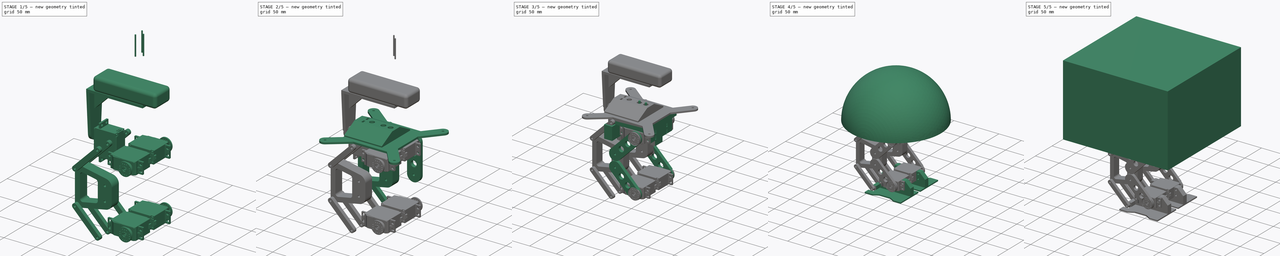
[diagram: build sequence overview — one tinted view per stage of 5, left to right]
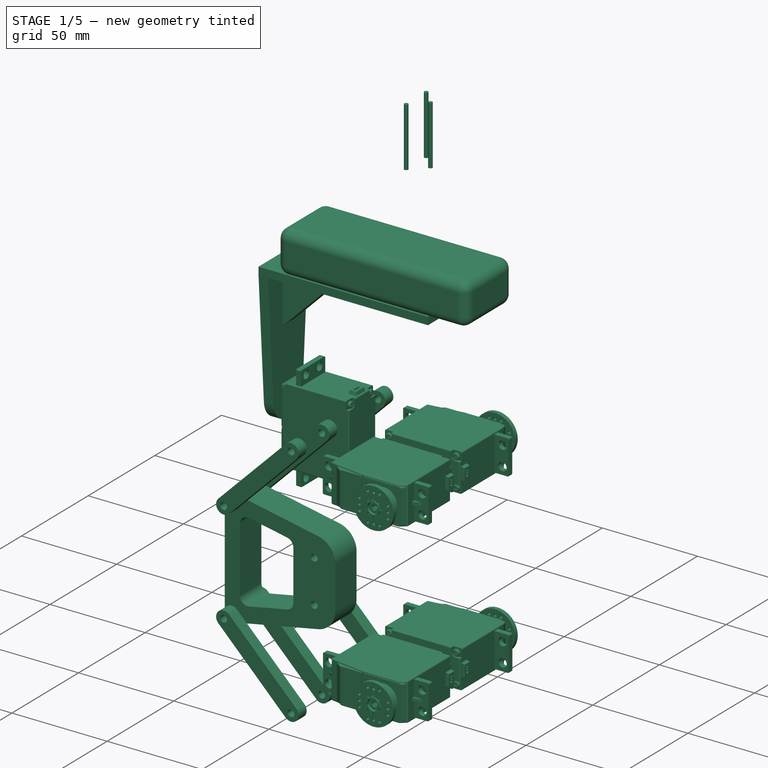
[diagram: stage 1 of 5 — iso view after this stage's code; geometry added in this stage tinted green]
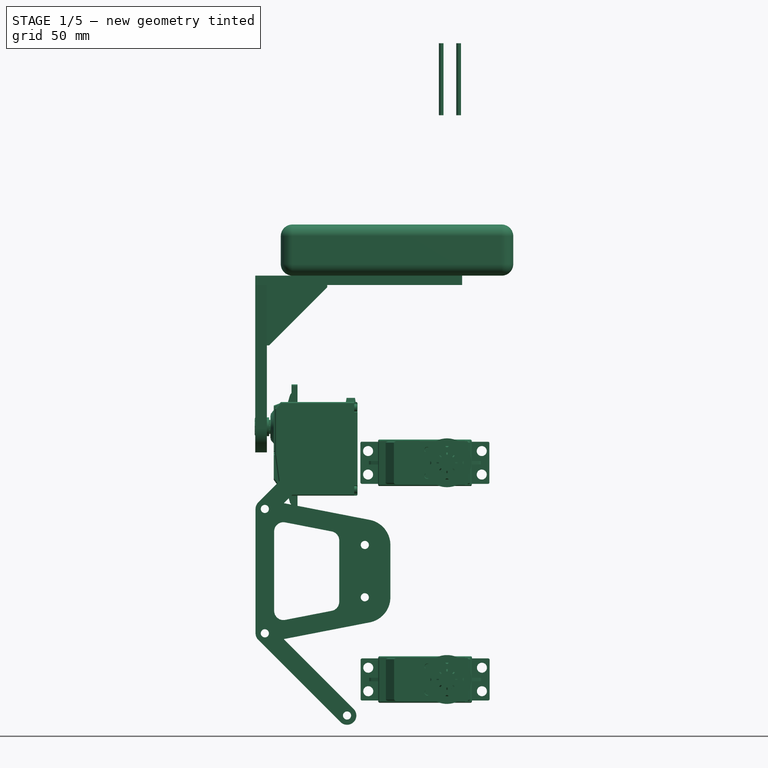
[diagram: stage 1 of 5 — front view after this stage's code; geometry added in this stage tinted green]
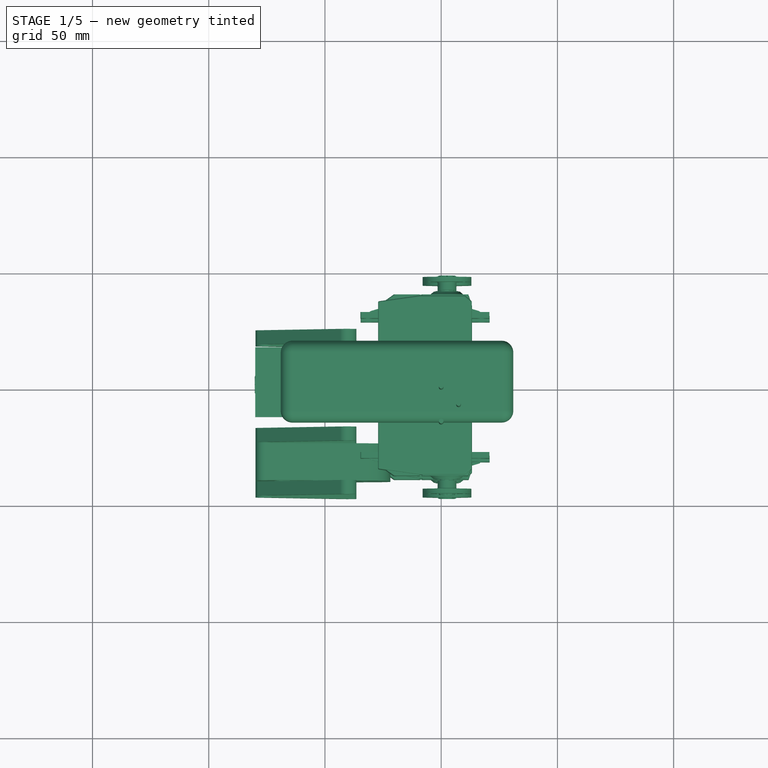
[diagram: stage 1 of 5 — top view after this stage's code; geometry added in this stage tinted green]
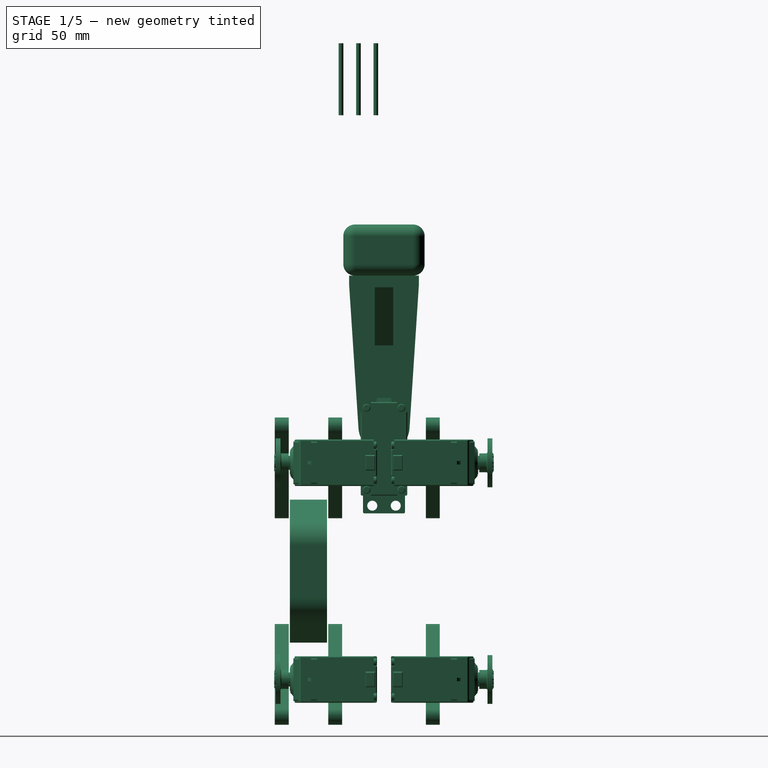
[diagram: stage 1 of 5 — right view after this stage's code; geometry added in this stage tinted green]
FCSTD DOCUMENT  (FreeCAD 0.16R6692 (Git))
Label: massu
License: All rights reserved
LicenseURL: http://en.wikipedia.org/wiki/All_rights_reserved
objects: Part::MultiFuse×42, Part::Cylinder×41, Part::FeaturePython×38, Part::Box×27, Part::Cut×25, Part::Mirroring×14, Part::Chamfer×8, Sketcher::SketchObject×7, PartDesign::Pad×7, Part::Feature×6, Part::Sphere×2, Part::Prism×1, Part::Fillet×1, App::DocumentObjectGroup×1
note: 226 computed .brp shape members not serialized (recipe doc carries the construction recipe); baked Part::Feature solids carry a one-line shape summary decoded from their .brp

FEATURE [Part::Feature] Part__Feature  label="servo"
  Placement = pos=(-7,-3,-17.5) rot=(1,0,0;1.5708rad)
  shape: bbox 55.5 x 41.74 x 20 mm, 365 faces (baked)
FEATURE [Part::Feature] Part__Feature001  label="horn"
  Placement = pos=(2.5,-41,-17.5) rot=(0.57735,-0.57735,0.57735;2.0944rad)
  shape: bbox 21 x 6.2 x 21 mm, 65 faces (baked)
FEATURE [Part::Mirroring] Part__Mirroring  label="servo (Mirror #1)"
  Base = (0,0,0)
  Normal = (0,1,0)
  Source = -> Part__Feature
FEATURE [Part::Mirroring] Part__Mirroring001  label="horn (Mirror #2)"
  Base = (0,0,0)
  Normal = (0,1,0)
  Source = -> Part__Feature001
FEATURE [Part::Feature] Part__Feature002  label="servo001"
  Placement = pos=(-36,0,-11.5) rot=(0,-1,0;1.5708rad)
  shape: bbox 41.74 x 20 x 55.5 mm, 365 faces (baked)
FEATURE [Part::Feature] Part__Feature003  label="horn001"
  Placement = pos=(-74,0,-2) rot=(0.357407,-0.862856,-0.357407;1.71777rad)
  shape: bbox 6.2 x 21 x 21 mm, 65 faces (baked)
FEATURE [Sketcher::SketchObject] Sketch
  Placement = pos=(-11.5,40,-16.5) rot=(0.57735,-0.57735,-0.57735;4.18879rad)
  sketch-geometry (10):
    g0: LineSegment StartX=-2.5 StartY=-3 StartZ=0 EndX=47.5 EndY=-3 EndZ=0
    g1: LineSegment StartX=-2.5 StartY=-25 StartZ=0 EndX=47.5 EndY=-25 EndZ=0
    g2: ArcOfCircle CenterX=-2.5 CenterY=-14 CenterZ=0 NormalX=0 NormalY=0 NormalZ=1 Radius=11 StartAngle=1.5708 EndAngle=4.71239
    g3: ArcOfCircle CenterX=47.5 CenterY=-14 CenterZ=0 NormalX=0 NormalY=0 NormalZ=1 Radius=11 StartAngle=4.71239 EndAngle=7.85398
    g4: LineSegment [constr] StartX=47.5 StartY=-14 StartZ=0 EndX=30.8333 EndY=-14 EndZ=0
    g5: LineSegment [constr] StartX=30.8333 StartY=-14 StartZ=0 EndX=14.1667 EndY=-14 EndZ=0
    g6: LineSegment [constr] StartX=14.1667 StartY=-14 StartZ=0 EndX=-2.5 EndY=-14 EndZ=0
    g7: Circle CenterX=14.1667 CenterY=-14 CenterZ=0 NormalX=0 NormalY=0 NormalZ=1 Radius=5
    g8: Circle CenterX=30.8333 CenterY=-14 CenterZ=0 NormalX=0 NormalY=0 NormalZ=1 Radius=5
    g9: Circle CenterX=47.5 CenterY=-14 CenterZ=0 NormalX=0 NormalY=0 NormalZ=1 Radius=1.75
  constraints (28):
    c: Equal(g1,g0)
    c: Parallel(g0,g1)
    c: DistanceX(g-1,g2) = -2.5
    c: DistanceY(g-1,g2) = -14
    c: Coincident(g2,g0)
    c: Coincident(g2,g1)
    c: Tangent(g0,g2)
    c: Tangent(g1,g2)
    c: Radius(g2) = 11
    c: Coincident(g1,g3)
    c: Coincident(g0,g3)
    c: Tangent(g0,g3)
    c: Distance(g0) = 50
    c: Coincident(g4,g5)
    c: Coincident(g5,g6)
    c: Coincident(g6,g2)
    c: Coincident(g3,g4)
    c: Horizontal(g4)
    c: Horizontal(g6)
    c: Horizontal(g5)
    c: Equal(g6,g5)
    c: Equal(g5,g4)
    c: Coincident(g4,g8)
    c: Coincident(g5,g7)
    c: Equal(g7,g8)
    c: Radius(g8) = 5
    c: Coincident(g9,g3)
    c: Radius(g9) = 1.75
FEATURE [Sketcher::SketchObject] Sketch001
  Placement = pos=(0.5,-24,-3) rot=(0,0.707107,0.707107;3.14159rad)
  sketch-geometry (7):
    g0: LineSegment StartX=41 StartY=5 StartZ=0 EndX=91 EndY=5 EndZ=0
    g1: LineSegment StartX=41 StartY=-3 StartZ=0 EndX=91 EndY=-3 EndZ=0
    g2: ArcOfCircle CenterX=41 CenterY=1 CenterZ=0 NormalX=0 NormalY=0 NormalZ=1 Radius=4 StartAngle=1.5708 EndAngle=4.71238
    g3: ArcOfCircle CenterX=91 CenterY=1 CenterZ=0 NormalX=0 NormalY=0 NormalZ=1 Radius=4 StartAngle=4.71238 EndAngle=7.85398
    g4: LineSegment [constr] StartX=41 StartY=1 StartZ=0 EndX=91 EndY=1 EndZ=0
    g5: Circle CenterX=41 CenterY=1 CenterZ=0 NormalX=0 NormalY=0 NormalZ=1 Radius=1.75
    g6: Circle CenterX=91 CenterY=1 CenterZ=0 NormalX=0 NormalY=0 NormalZ=1 Radius=1.75
  constraints (20):
    c: Equal(g1,g0)
    c: Parallel(g0,g1)
    c: Coincident(g2,g0)
    c: Coincident(g2,g1)
    c: Tangent(g0,g2)
    c: Tangent(g1,g2)
    c: Radius(g2) = 4
    c: Coincident(g1,g3)
    c: Coincident(g0,g3)
    c: Tangent(g0,g3)
    c: Coincident(g4,g3)
    c: Coincident(g4,g2)
    c: Horizontal(g4)
    c: Distance(g4) = 50
    c: DistanceX(g-1,g2) = 41
    c: DistanceY(g-1,g2) = 1
    c: Coincident(g5,g2)
    c: Coincident(g6,g3)
    c: Equal(g5,g6)
    c: Radius(g5) = 1.75
FEATURE [PartDesign::Pad] Pad001
  Length = 6
  Length2 = 100
  Placement = pos=(0.5,-24,-3) rot=(0,0.707107,0.707107;3.14159rad)
  Sketch = -> Sketch001
  Type = 0
FEATURE [Part::FeaturePython] Clone002  label="Clone of servo (Mirror #1)"  # Draft clone (typed FeaturePython)
  Objects = -> [Part__Mirroring]
  Placement = pos=(0.0818799,0,-57.5) rot=(1,0,0;3.14159rad)
  Scale = (1,1,1)
FEATURE [Sketcher::SketchObject] Sketch004
  Placement = pos=(-49.5,-40.5,47) rot=(0,0.707107,0.707107;3.14159rad)
  sketch-geometry (23):
    g0: LineSegment StartX=-4.1014 StartY=-53.7026 StartZ=0 EndX=40.2359 EndY=-45.0737 EndZ=0
    g1: LineSegment StartX=45 StartY=-49 StartZ=0 EndX=45 EndY=-102.5 EndZ=0
    g2: LineSegment StartX=-4.1014 StartY=-97.7974 StartZ=0 EndX=40.2359 EndY=-106.426 EndZ=0
    g3: LineSegment StartX=-13 StartY=-64.5 StartZ=0 EndX=-13 EndY=-87 EndZ=0
    g4: ArcOfCircle CenterX=-2 CenterY=-64.5 CenterZ=0 NormalX=0 NormalY=0 NormalZ=1 Radius=11 StartAngle=1.76301 EndAngle=3.1416
    g5: ArcOfCircle CenterX=-2 CenterY=-87 CenterZ=0 NormalX=0 NormalY=0 NormalZ=1 Radius=11 StartAngle=3.14159 EndAngle=4.52017
    g6: ArcOfCircle CenterX=41 CenterY=-49 CenterZ=0 NormalX=0 NormalY=0 NormalZ=1 Radius=4 StartAngle=1.118e-08 EndAngle=1.76301
    g7: ArcOfCircle CenterX=41 CenterY=-102.5 CenterZ=0 NormalX=0 NormalY=0 NormalZ=1 Radius=4 StartAngle=4.52017 EndAngle=6.28319
    g8: LineSegment StartX=12.2359 StartY=-58.6731 StartZ=0 EndX=32.2359 EndY=-54.7807 EndZ=0
    g9: LineSegment StartX=37 StartY=-58.7071 StartZ=0 EndX=37 EndY=-92.793 EndZ=0
    g10: LineSegment StartX=12.2359 StartY=-92.8269 StartZ=0 EndX=32.2359 EndY=-96.7193 EndZ=0
    g11: LineSegment StartX=9 StartY=-62.5995 StartZ=0 EndX=9 EndY=-88.9005 EndZ=0
    g12: ArcOfCircle CenterX=13 CenterY=-88.9005 CenterZ=0 NormalX=0 NormalY=0 NormalZ=1 Radius=4 StartAngle=3.14159 EndAngle=4.52017
    g13: ArcOfCircle CenterX=13 CenterY=-62.5995 CenterZ=0 NormalX=0 NormalY=0 NormalZ=1 Radius=4 StartAngle=1.76301 EndAngle=3.14159
    g14: ArcOfCircle CenterX=33 CenterY=-58.7071 CenterZ=0 NormalX=0 NormalY=0 NormalZ=1 Radius=4 StartAngle=6.28319 EndAngle=8.0462
    g15: ArcOfCircle CenterX=33 CenterY=-92.793 CenterZ=0 NormalX=0 NormalY=0 NormalZ=1 Radius=4 StartAngle=4.52017 EndAngle=6.28319
    g16: LineSegment [constr] StartX=20.821 StartY=-48.8522 StartZ=0 EndX=22.3492 EndY=-56.7049 EndZ=0
    g17: LineSegment [constr] StartX=20.4081 StartY=-102.567 StartZ=0 EndX=21.9363 EndY=-94.7148 EndZ=0
    g18: Circle CenterX=41 CenterY=-49 CenterZ=0 NormalX=0 NormalY=0 NormalZ=1 Radius=1.75
    g19: Circle CenterX=-2 CenterY=-64.5 CenterZ=0 NormalX=0 NormalY=0 NormalZ=1 Radius=1.75
    g20: Circle CenterX=-2 CenterY=-87 CenterZ=0 NormalX=0 NormalY=0 NormalZ=1 Radius=1.75
    g21: Circle CenterX=41 CenterY=-102.5 CenterZ=0 NormalX=0 NormalY=0 NormalZ=1 Radius=1.75
    g22: LineSegment [constr] StartX=37 StartY=-73.066 StartZ=0 EndX=45 EndY=-73.066 EndZ=0
  constraints (74):
    c: Vertical(g3)
    c: Vertical(g1)
    c: Coincident(g0,g4)
    c: Tangent(g4,g0)
    c: Coincident(g3,g4)
    c: Tangent(g3,g4)
    c: Coincident(g3,g5)
    c: Tangent(g3,g5)
    c: Coincident(g2,g5)
    c: Tangent(g5,g2)
    c: Coincident(g1,g7)
    c: Coincident(g2,g7)
    c: Coincident(g6,g0)
    c: Coincident(g1,g6)
    c: Tangent(g6,g0)
    c: Tangent(g6,g1)
    c: Tangent(g2,g7)
    c: Tangent(g7,g1)
    c: Equal(g6,g7)
    c: Equal(g4,g5)
    c: Radius(g4) = 11
    c: Radius(g6) = 4
    c: Distance(g5,g4) = 22.5
    c: DistanceX(g6,g4) = -43
    c: Equal(g0,g2)
    c: Coincident(g12,g11)
    c: Coincident(g12,g10)
    c: Coincident(g13,g8)
    c: Coincident(g13,g11)
    c: Coincident(g14,g8)
    c: Coincident(g14,g9)
    c: Coincident(g15,g9)
    c: Coincident(g15,g10)
    c: Vertical(g11)
    c: Vertical(g9)
    c: Parallel(g8,g0)
    c: Parallel(g10,g2)
    c: Tangent(g13,g8)
    c: Tangent(g11,g13)
    c: Tangent(g11,g12)
    c: Tangent(g12,g10)
    c: Tangent(g10,g15)
    c: Tangent(g15,g9)
    c: Tangent(g9,g14)
    c: Tangent(g8,g14)
    c: Equal(g13,g12)
    c: Equal(g14,g15)
    c: Radius(g14) = 4
    c: Distance(g5,g11) = 11
    c: Distance(g7,g9) = 4
    c: Equal(g13,g14)
    c: PointOnObject(g16,g0)
    c: PointOnObject(g16,g8)
    c: Perpendicular(g16,g0)
    c: PointOnObject(g17,g2)
    c: PointOnObject(g17,g10)
    c: Perpendicular(g2,g17)
    c: Equal(g17,g16)
    c: Distance(g17) = 8
    c: DistanceY(g6,g4) = -15.5
    c: Coincident(g19,g4)
    c: Coincident(g20,g5)
    c: Coincident(g21,g7)
    c: Coincident(g18,g6)
    c: Equal(g20,g19)
    c: Equal(g19,g18)
    c: Equal(g18,g21)
    c: Radius(g19) = 1.75
    c: DistanceX(g-1,g6) = 41
    c: PointOnObject(g22,g1)
    c: Horizontal(g22)
    c: PointOnObject(g22,g9)
    c: Equal(g22,g16)
    c: DistanceY(g-1,g4) = -64.5
FEATURE [PartDesign::Pad] Pad003
  Length = 16
  Length2 = 100
  Placement = pos=(-49.5,-40.5,47) rot=(0,0.707107,0.707107;3.14159rad)
  Sketch = -> Sketch004
  Type = 0
FEATURE [Part::Feature] Part__Feature004  label="final-can"
  Placement = pos=(-13,112,-160) rot=(0,0,1;0rad)
  shape: bbox 66.1 x 66.1 x 115.2 mm, 53 faces (baked)
FEATURE [Part::FeaturePython] Clone  label="Clone of Pad001"  # Draft clone (typed FeaturePython)
  Objects = -> [Pad001]
  Placement = pos=(-131.5,-24,-54.5) rot=(-1,0,0;1.5708rad)
  Scale = (1,1,1)
FEATURE [Part::FeaturePython] Clone008  label="Clone of Pad004"  # Draft clone (typed FeaturePython)
  Objects = -> [Pad001]
  Placement = pos=(0.5,-47,-3) rot=(0,0.707107,0.707107;3.14159rad)
  Scale = (1,1,1)
FEATURE [Part::FeaturePython] Clone009  label="Clone of Pad005"  # Draft clone (typed FeaturePython)
  Objects = -> [Pad001]
  Placement = pos=(-131.5,-47,-54.5) rot=(-1,0,0;1.5708rad)
  Scale = (1,1,1)
FEATURE [Part::Mirroring] Part__Mirroring021  label="Pad001 (Mirror #10)"
  Base = (-65.5,-3.57628e-07,-2)
  Normal = (0,1,-1.19209e-07)
  Source = -> Pad001
FEATURE [Part::Mirroring] Part__Mirroring022  label="Clone of servo (Mirror #11)"
  Base = (0,0,0)
  Normal = (0,1,0)
  Source = -> Clone002
FEATURE [Part::Mirroring] Part__Mirroring024  label="Clone of Pad001 (Mirror #13)"
  Base = (0,0,0)
  Normal = (0,1,0)
  Source = -> Clone
FEATURE [Part::Mirroring] Part__Mirroring030  label="horn003 (Mirror #17)"
  Base = (0,0,0)
  Normal = (0,1,0)
  Source = -> Part__Feature007
FEATURE [Part::Box] Box064  label="Cube067"
  Height = 22
  Length = 100
  Placement = pos=(-70,-17.5,25) rot=(0,0,1;0rad)
  Width = 35
FEATURE [Part::Fillet] Fillet007
  Base = -> Box064
  Edges = 12 edges r=5: [Edge1,Edge2,Edge3,Edge4,Edge5,Edge6,Edge7,Edge8,Edge9,Edge10,Edge11,Edge12]
  Placement = pos=(1,0,38) rot=(0,0,1;0rad)
FEATURE [Sketcher::SketchObject] Sketch008
  Placement = pos=(-80,0,0) rot=(0.57735,-0.57735,-0.57735;2.0944rad)
  sketch-geometry (6):
    g0: ArcOfCircle CenterX=0 CenterY=-2 CenterZ=0 NormalX=0 NormalY=0 NormalZ=1 Radius=11 StartAngle=3.20669 EndAngle=6.21809
    g1: LineSegment StartX=-15 StartY=63 StartZ=0 EndX=15 EndY=63 EndZ=0
    g2: LineSegment StartX=15 StartY=59 StartZ=0 EndX=10.9767 EndY=-2.71554 EndZ=0
    g3: LineSegment StartX=-15 StartY=63 StartZ=0 EndX=-15 EndY=59 EndZ=0
    g4: LineSegment StartX=15 StartY=63 StartZ=0 EndX=15 EndY=59 EndZ=0
    g5: LineSegment StartX=-15 StartY=59 StartZ=0 EndX=-10.9767 EndY=-2.71554 EndZ=0
  constraints (19):
    c: PointOnObject(g0,g-2)
    c: Distance(g-1,g0) = 2
    c: Radius(g0) = 11
    c: Horizontal(g1)
    c: Distance(g0,g1) = 65
    c: Distance(g1) = 30
    c: Coincident(g0,g2)
    c: Coincident(g3,g1)
    c: Vertical(g3)
    c: Coincident(g4,g1)
    c: Vertical(g4)
    c: Coincident(g5,g3)
    c: Equal(g5,g2)
    c: Equal(g3,g4)
    c: Coincident(g2,g4)
    c: Tangent(g0,g2)
    c: Coincident(g5,g0)
    c: Tangent(g5,g0)
    c: Distance(g4) = 4
FEATURE [PartDesign::Pad] Pad006
  Length = 5
  Length2 = 100
  Placement = pos=(-80,0,0) rot=(0.57735,-0.57735,-0.57735;2.0944rad)
  Reversed = true
  Sketch = -> Sketch008
  Type = 0
FEATURE [Part::Cylinder] Cylinder069  label="Cylinder181"
  Angle = 360
  Height = 31
  Placement = pos=(0,-18.5,132) rot=(0,0,1;0rad)
  Radius = 1
FEATURE [Part::Cylinder] Cylinder070  label="Cylinder182"
  Angle = 360
  Height = 31
  Placement = pos=(7.5,-11,132) rot=(0,0,1;0rad)
  Radius = 1
FEATURE [Part::Cylinder] Cylinder071  label="Cylinder183"
  Angle = 360
  Height = 31
  Placement = pos=(0,-3.5,132) rot=(0,0,1;0rad)
  Radius = 1
FEATURE [Part::Box] Box068  label="Cube071"
  Height = 4
  Length = 85
  Placement = pos=(-76,-15,59) rot=(0,0,1;0rad)
  Width = 30
FEATURE [Part::Box] Box069  label="Cube072"
  Height = 30
  Length = 27
  Placement = pos=(-76,-4,33) rot=(0,0,1;0rad)
  Width = 8
FEATURE [Part::MultiFuse] Fusion061
  Shapes = -> [Pad006,Box068]
FEATURE [Part::Chamfer] Chamfer013
  Base = -> Box069
  Edges = 1 edges r=25: [Edge8]
FEATURE [Part::MultiFuse] Fusion062
  Shapes = -> [Chamfer013,Fusion061]
FEATURE [Part::FeaturePython] Clone026  label="Clone of Fillet007"  # Draft clone (typed FeaturePython)
  Objects = -> [Fillet007]
  Placement = pos=(1,0,38) rot=(0,0,1;0rad)
  Scale = (1,1,1)
FEATURE [Part::FeaturePython] Clone027  label="Clone of Pad001 (Mirror #10)"  # Draft clone (typed FeaturePython)
  Objects = -> [Part__Mirroring021]
  Placement = pos=(-13.2764,0,28.052) rot=(0,-1,0;0.785398rad)
  Scale = (1,1,1)
FEATURE [Part::FeaturePython] Clone028  label="Clone of Clone of Pad001 (Mirror #13)"  # Draft clone (typed FeaturePython)
  Objects = -> [Part__Mirroring024]
  Placement = pos=(27.3823,7.62939e-06,-115.604) rot=(0,1,0;0.785398rad)
  Scale = (1,1,1)
FEATURE [Part::FeaturePython] Clone029  label="Clone of servo001"  # Draft clone (typed FeaturePython)
  Objects = -> [Part__Feature002]
  Placement = pos=(-36,0,-11.5) rot=(0,-1,0;1.5708rad)
  Scale = (1,1,1)
FEATURE [Part::FeaturePython] Clone030  label="Clone of horn001"  # Draft clone (typed FeaturePython)
  Objects = -> [Part__Feature003]
  Placement = pos=(-74,0,-2) rot=(0.357407,-0.862856,-0.357407;1.71777rad)
  Scale = (1,1,1)
FEATURE [Part::FeaturePython] Clone031  label="Clone of horn"  # Draft clone (typed FeaturePython)
  Objects = -> [Part__Feature001]
  Placement = pos=(2.5,-41,-17.5) rot=(0.57735,-0.57735,0.57735;2.0944rad)
  Scale = (1,1,1)
FEATURE [Part::FeaturePython] Clone032  label="Clone of horn003"  # Draft clone (typed FeaturePython)
  Objects = -> [Part__Feature007]
  Placement = pos=(2.5,-41,-110.711) rot=(0.57735,-0.57735,0.57735;2.0944rad)
  Scale = (1,1,1)
FEATURE [Part::FeaturePython] Clone033  label="Clone of servo"  # Draft clone (typed FeaturePython)
  Objects = -> [Part__Feature]
  Placement = pos=(-7,-3,-17.5) rot=(1,0,0;1.5708rad)
  Scale = (1,1,1)
FEATURE [Part::FeaturePython] Clone034  label="Clone of Clone of servo (Mirror #1)"  # Draft clone (typed FeaturePython)
  Objects = -> [Clone002]
  Placement = pos=(0.0818799,0,-128.211) rot=(1,0,0;3.14159rad)
  Scale = (1,1,1)
FEATURE [Part::FeaturePython] Clone035  label="Clone of Clone of servo (Mirror #11)"  # Draft clone (typed FeaturePython)
  Objects = -> [Part__Mirroring022]
  Placement = pos=(4e-12,0,-70.7107) rot=(0,0,1;0rad)
  Scale = (1,1,1)
FEATURE [Part::FeaturePython] Clone036  label="Clone of servo (Mirror #1)001"  # Draft clone (typed FeaturePython)
  Objects = -> [Part__Mirroring]
  Scale = (1,1,1)
FEATURE [Part::FeaturePython] Clone037  label="Clone of horn (Mirror #2)"  # Draft clone (typed FeaturePython)
  Objects = -> [Part__Mirroring001]
  Scale = (1,1,1)
FEATURE [Part::FeaturePython] Clone038  label="Clone of horn003 (Mirror #17)"  # Draft clone (typed FeaturePython)
  Objects = -> [Part__Mirroring030]
  Placement = pos=(4e-12,0,-70.7107) rot=(0,0,1;0rad)
  Scale = (1,1,1)
FEATURE [Part::FeaturePython] Clone039  label="Clone of Pad003"  # Draft clone (typed FeaturePython)
  Objects = -> [Pad003]
  Placement = pos=(-34.8553,-40.5,11.6447) rot=(0,0.707107,0.707107;3.14159rad)
  Scale = (1,1,1)
FEATURE [Part::FeaturePython] Clone040  label="Clone of Pad006"  # Draft clone (typed FeaturePython)
  Objects = -> [Pad001]
  Placement = pos=(-10.8015,-24,26.2843) rot=(-0.281085,0.678598,0.678598;2.59356rad)
  Scale = (1,1,1)
FEATURE [Part::FeaturePython] Clone041  label="Clone of Clone of Pad004"  # Draft clone (typed FeaturePython)
  Objects = -> [Clone008]
  Placement = pos=(-10.8015,-47,26.2843) rot=(-0.281085,0.678598,0.678598;2.59356rad)
  Scale = (1,1,1)
FEATURE [Part::FeaturePython] Clone042  label="Clone of Clone of Pad001"  # Draft clone (typed FeaturePython)
  Objects = -> [Clone]
  Placement = pos=(-104.14,-24,-61.1568) rot=(-0.862856,0.357407,0.357407;1.71777rad)
  Scale = (1,1,1)
FEATURE [Part::FeaturePython] Clone043  label="Clone of Clone of Pad005"  # Draft clone (typed FeaturePython)
  Objects = -> [Clone009]
  Placement = pos=(-104.14,-47,-61.1568) rot=(-0.862856,0.357407,0.357407;1.71777rad)
  Scale = (1,1,1)
FEATURE [App::DocumentObjectGroup] Group  label="assembly"
  Group = -> [Clone014,Clone015,Clone016,Clone017,Clone018,Clone019,Clone020,Clone021,Clone022,Clone023,Clone024,Clone025,Clone026,Clone027,Clone028,Clone029,Clone030,Clone031,Clone032,Clone033,Clone034,Clone035,Clone036,Clone037,Clone038,Clone039,Clone040,Clone041,Clone042,Clone043]
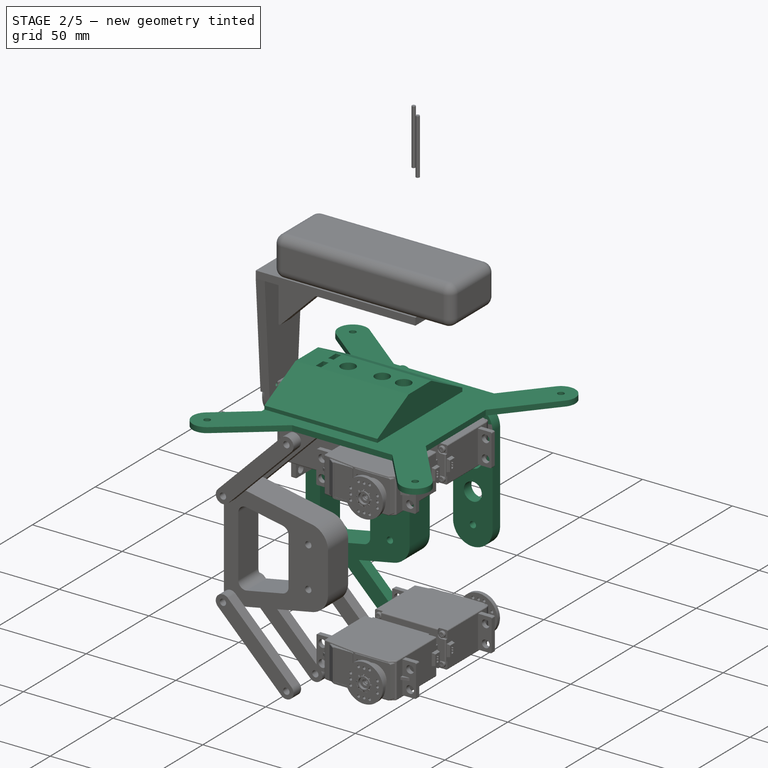
[diagram: stage 2 of 5 — iso view after this stage's code; geometry added in this stage tinted green]
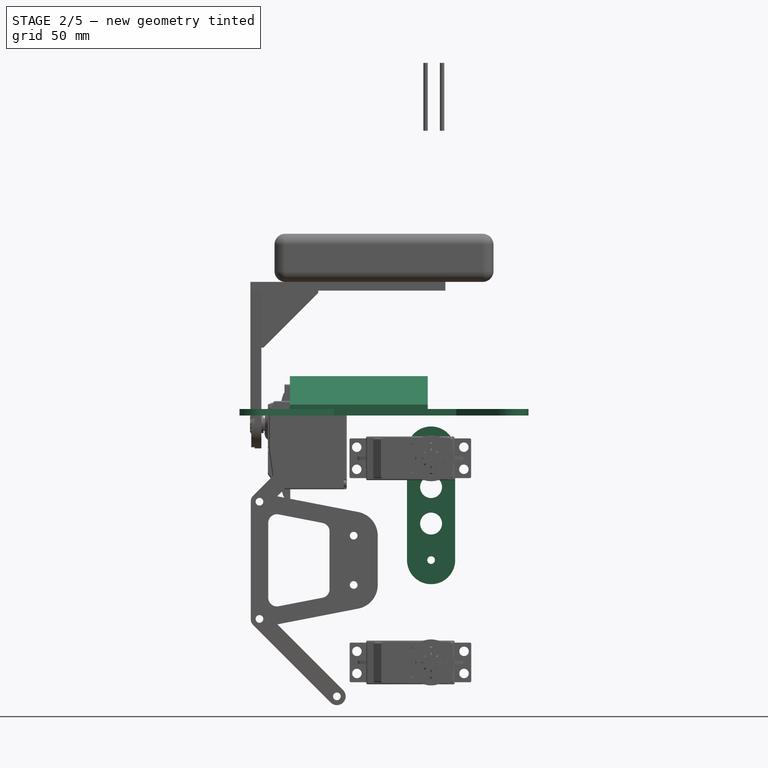
[diagram: stage 2 of 5 — front view after this stage's code; geometry added in this stage tinted green]
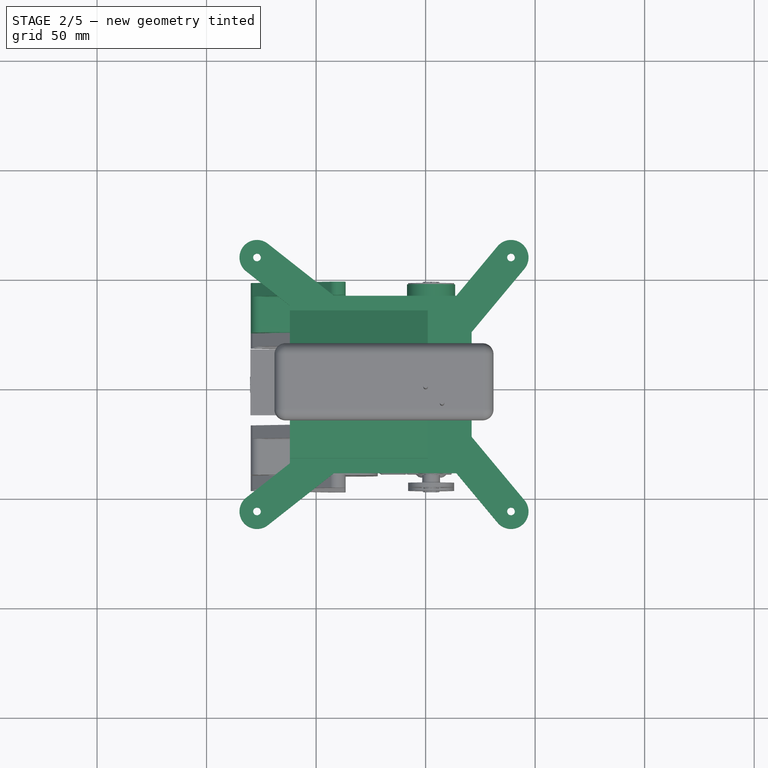
[diagram: stage 2 of 5 — top view after this stage's code; geometry added in this stage tinted green]
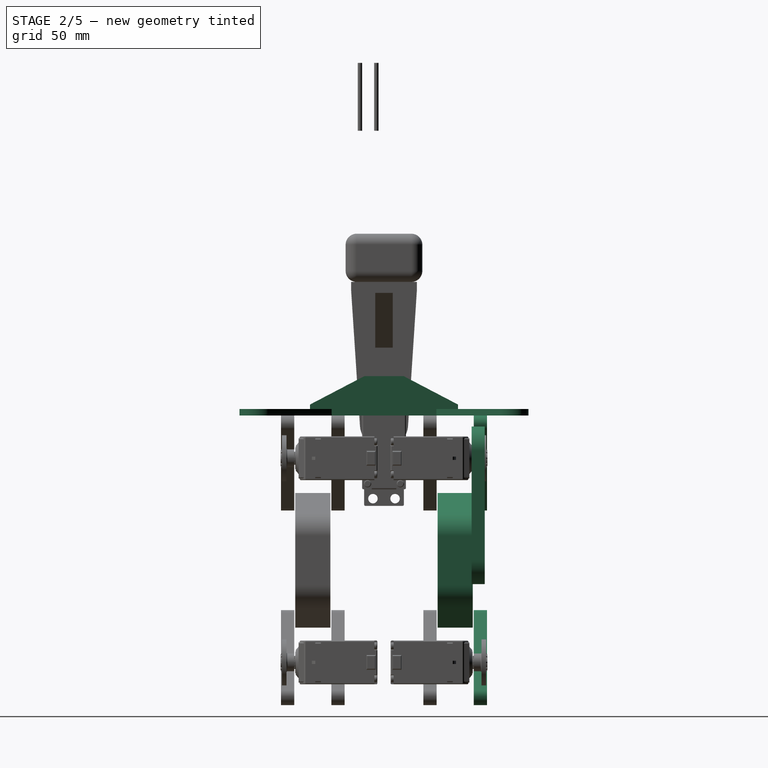
[diagram: stage 2 of 5 — right view after this stage's code; geometry added in this stage tinted green]
FEATURE [Part::Cylinder] Cylinder023  label="Cylinder145"
  Angle = 360
  Height = 31
  Placement = pos=(7.5,-11,132) rot=(0,0,1;0rad)
  Radius = 1
FEATURE [Part::Cylinder] Cylinder024  label="Cylinder146"
  Angle = 360
  Height = 31
  Placement = pos=(0,-3.5,132) rot=(0,0,1;0rad)
  Radius = 1
FEATURE [Part::Cylinder] Cylinder030  label="Joint-D014"
  Angle = 360
  Height = 24.5
  Placement = pos=(16,-24.5,7) rot=(0,1,0;1.5708rad)
  Radius = 1.75
FEATURE [Part::Cylinder] Cylinder031  label="Joint-D015"
  Angle = 360
  Height = 21.5
  Placement = pos=(37,-24.5,7) rot=(0,1,0;1.5708rad)
  Radius = 3
FEATURE [Part::MultiFuse] Fusion024
  Placement = pos=(-12,9.5,0) rot=(0.707107,0,0.707107;3.14159rad)
  Shapes = -> [Cylinder031,Cylinder030]
FEATURE [Part::MultiFuse] Fusion025
  Placement = pos=(-2,9.5,0) rot=(0.707107,0,0.707107;3.14159rad)
  Shapes = -> [Cylinder031,Cylinder030]
FEATURE [Part::MultiFuse] Fusion026
  Placement = pos=(-12,-39.5,0) rot=(0.707107,0,0.707107;3.14159rad)
  Shapes = -> [Cylinder031,Cylinder030]
FEATURE [Part::MultiFuse] Fusion027
  Placement = pos=(-2,-39.5,0) rot=(0.707107,0,0.707107;3.14159rad)
  Shapes = -> [Cylinder031,Cylinder030]
FEATURE [Part::Box] Box029  label="Cube047"
  Height = 6
  Length = 3
  Placement = pos=(-8,41.5,18.5) rot=(0.707107,0,0.707107;3.14159rad)
  Width = 74
FEATURE [Part::Box] Box030  label="Cube048"
  Height = 6
  Length = 3
  Placement = pos=(2,41.5,18.5) rot=(0.707107,0,0.707107;3.14159rad)
  Width = 74
FEATURE [PartDesign::Pad] Pad
  Length = 6
  Length2 = 100
  Placement = pos=(-11.5,40,-16.5) rot=(0.57735,-0.57735,-0.57735;4.18879rad)
  Sketch = -> Sketch
  Type = 0
FEATURE [Part::Mirroring] Part__Mirroring019  label="Clone of Pad004 (Mirror #8)"
  Base = (0,0,0)
  Normal = (0,1,0)
  Source = -> Clone008
FEATURE [Part::Mirroring] Part__Mirroring023  label="Pad003 (Mirror #12)"
  Base = (0,0,0)
  Normal = (0,1,0)
  Source = -> Pad003
FEATURE [Part::Mirroring] Part__Mirroring025  label="Clone of Pad005 (Mirror #14)"
  Base = (-65.5,-3.8147e-06,-55.5)
  Normal = (0,1,-1.19209e-07)
  Source = -> Clone009
FEATURE [Part::Box] Box063  label="Cube066"
  Height = 15
  Length = 57
  Placement = pos=(-93,-10.5,-6) rot=(0,0,1;0rad)
  Width = 21
FEATURE [Part::Cylinder] Cylinder
  Angle = 360
  Height = 60
  Placement = pos=(-39,0,-20) rot=(0,0,1;0rad)
  Radius = 4
FEATURE [Part::Cylinder] Cylinder062  label="Cylinder156"
  Angle = 360
  Height = 60
  Placement = pos=(-20,0,-12) rot=(0,0,1;0rad)
  Radius = 1.75
FEATURE [Part::Cylinder] Cylinder063  label="Cylinder157"
  Angle = 360
  Height = 60
  Placement = pos=(-8,0,-12) rot=(0,0,1;0rad)
  Radius = 1.75
FEATURE [Part::MultiFuse] Fusion056
  Placement = pos=(-30,0,-2) rot=(0.57735,0.57735,-0.57735;4.18879rad)
  Shapes = -> [Fusion026,Fusion027,Fusion024,Fusion025,Box029,Box030]
FEATURE [Part::Cylinder] Cylinder066  label="Cylinder178"
  Angle = 360
  Height = 23
  Placement = pos=(-3,66,73) rot=(0.57735,-0.57735,0.57735;2.0944rad)
  Radius = 5
FEATURE [Part::Cylinder] Cylinder067  label="Cylinder179"
  Angle = 360
  Height = 23
  Placement = pos=(-3,71,73) rot=(0.57735,-0.57735,0.57735;2.0944rad)
  Radius = 11.5
FEATURE [Part::Cylinder] Cylinder068  label="Cylinder180"
  Angle = 360
  Height = 31
  Placement = pos=(-7.5,-11,132) rot=(0,0,1;0rad)
  Radius = 1
FEATURE [Part::MultiFuse] Fusion057
  Shapes = -> [Cylinder066,Cylinder067]
FEATURE [Part::MultiFuse] Fusion058  label="cruz008"
  Placement = pos=(-3,-97.5,62) rot=(-1,0,0;1.5708rad)
  Shapes = -> [Cylinder069,Cylinder068,Cylinder071,Cylinder070]
FEATURE [Part::MultiFuse] Fusion059
  Placement = pos=(-30,53.7401,-51.4975) rot=(0.357407,-0.357407,0.862856;1.71777rad)
  Shapes = -> [Fusion058,Fusion057]
FEATURE [Part::Cut] Cut095
  Base = -> Fusion062
  Tool = -> Fusion059
FEATURE [Sketcher::SketchObject] Sketch009
  Placement = pos=(0,0,2) rot=(0,0,1;0rad)
  sketch-geometry (25):
    g0: Circle [constr] CenterX=-19 CenterY=0 CenterZ=0 NormalX=0 NormalY=0 NormalZ=1 Radius=82
    g1: LineSegment [constr] StartX=-76.9828 StartY=57.9828 StartZ=0 EndX=38.9828 EndY=57.9828 EndZ=0
    g2: LineSegment [constr] StartX=38.9828 StartY=57.9828 StartZ=0 EndX=38.9828 EndY=-57.9828 EndZ=0
    g3: LineSegment [constr] StartX=38.9828 StartY=-57.9828 StartZ=0 EndX=-76.9828 EndY=-57.9828 EndZ=0
    g4: LineSegment [constr] StartX=-76.9828 StartY=-57.9828 StartZ=0 EndX=-76.9828 EndY=57.9828 EndZ=0
    g5: LineSegment StartX=-81.9324 StartY=51.6978 StartZ=0 EndX=-62 EndY=36 EndZ=0
    g6: LineSegment StartX=-62 StartY=36 StartZ=0 EndX=-62 EndY=-36 EndZ=0
    g7: LineSegment StartX=-62 StartY=-36 StartZ=0 EndX=-81.9324 EndY=-51.6978 EndZ=0
    g8: LineSegment StartX=-72.0331 StartY=64.2677 StartZ=0 EndX=-41.8538 EndY=40.5 EndZ=0
    g9: LineSegment StartX=-41.8538 StartY=40.5 StartZ=0 EndX=14 EndY=40.5 EndZ=0
    g10: LineSegment StartX=14 StartY=40.5 StartZ=0 EndX=32.837 EndY=63.1043 EndZ=0
    g11: LineSegment StartX=45.1285 StartY=52.8613 StartZ=0 EndX=21 EndY=23.9072 EndZ=0
    g12: LineSegment StartX=21 StartY=23.9072 StartZ=0 EndX=21 EndY=-23.9072 EndZ=0
    g13: LineSegment StartX=21 StartY=-23.9072 StartZ=0 EndX=45.1285 EndY=-52.8613 EndZ=0
    g14: LineSegment StartX=-72.0331 StartY=-64.2677 StartZ=0 EndX=-41.8538 EndY=-40.5 EndZ=0
    g15: LineSegment StartX=-41.8538 StartY=-40.5 StartZ=0 EndX=14 EndY=-40.5 EndZ=0
    g16: LineSegment StartX=14 StartY=-40.5 StartZ=0 EndX=32.837 EndY=-63.1043 EndZ=0
    g17: ArcOfCircle CenterX=-76.9828 CenterY=57.9828 CenterZ=0 NormalX=0 NormalY=0 NormalZ=1 Radius=8 StartAngle=0.903693 EndAngle=4.04529
    g18: ArcOfCircle CenterX=-76.9828 CenterY=-57.9828 CenterZ=0 NormalX=0 NormalY=0 NormalZ=1 Radius=8 StartAngle=2.2379 EndAngle=5.37949
    g19: ArcOfCircle CenterX=38.9828 CenterY=-57.9828 CenterZ=0 NormalX=0 NormalY=0 NormalZ=1 Radius=8 StartAngle=3.83633 EndAngle=6.97793
    g20: ArcOfCircle CenterX=38.9828 CenterY=57.9828 CenterZ=0 NormalX=0 NormalY=0 NormalZ=1 Radius=8 StartAngle=5.58844 EndAngle=8.73004
    g21: Circle CenterX=-76.9828 CenterY=57.9828 CenterZ=0 NormalX=0 NormalY=0 NormalZ=1 Radius=1.75
    g22: Circle CenterX=-76.9828 CenterY=-57.9828 CenterZ=0 NormalX=0 NormalY=0 NormalZ=1 Radius=1.75
    g23: Circle CenterX=38.9828 CenterY=57.9828 CenterZ=0 NormalX=0 NormalY=0 NormalZ=1 Radius=1.75
    g24: Circle CenterX=38.9828 CenterY=-57.9828 CenterZ=0 NormalX=0 NormalY=0 NormalZ=1 Radius=1.75
  constraints (71):
    c: Radius(g0) = 82
    c: PointOnObject(g0,g-1)
    c: Distance(g-1,g0) = 19
    c: Coincident(g1,g2)
    c: Coincident(g2,g3)
    c: Coincident(g3,g4)
    c: Coincident(g4,g1)
    c: Horizontal(g1)
    c: Horizontal(g3)
    c: Vertical(g2)
    c: Vertical(g4)
    c: Equal(g4,g1)
    c: Coincident(g5,g6)
    c: Coincident(g6,g7)
    c: Coincident(g8,g9)
    c: Horizontal(g9)
    c: Coincident(g9,g10)
    c: Coincident(g11,g12)
    c: Vertical(g12)
    c: Coincident(g12,g13)
    c: Coincident(g14,g15)
    c: Horizontal(g15)
    c: Coincident(g15,g16)
    c: Vertical(g6)
    c: Parallel(g5,g8)
    c: Parallel(g7,g14)
    c: Parallel(g10,g11)
    c: Parallel(g13,g16)
    c: Equal(g9,g15)
    c: Equal(g8,g14)
    c: Equal(g7,g5)
    c: PointOnObject(g1,g0)
    c: PointOnObject(g3,g0)
    c: PointOnObject(g1,g0)
    c: Distance(g-1,g12) = 21
    c: Distance(g-1,g9) = 40.5
    c: DistanceX(g-2,g9) = 14
    c: Coincident(g17,g8)
    c: Coincident(g17,g5)
    c: Coincident(g17,g1)
    c: Tangent(g17,g8)
    c: Tangent(g17,g5)
    c: Coincident(g18,g3)
    c: Coincident(g18,g7)
    c: Coincident(g18,g14)
    c: Tangent(g18,g7)
    c: Tangent(g18,g14)
    c: Coincident(g19,g2)
    c: Coincident(g19,g13)
    c: Coincident(g19,g16)
    c: Tangent(g13,g19)
    c: Tangent(g16,g19)
    c: Coincident(g20,g1)
    c: Coincident(g20,g10)
    c: Coincident(g20,g11)
    c: Tangent(g10,g20)
    c: Tangent(g11,g20)
    c: Radius(g17) = 8
    c: Equal(g17,g18)
    c: Equal(g17,g20)
    c: Equal(g17,g19)
    c: Coincident(g21,g1)
    c: Coincident(g22,g3)
    c: Coincident(g23,g1)
    c: Coincident(g24,g2)
    c: Radius(g21) = 1.75
    c: Equal(g21,g23)
    c: Equal(g21,g24)
    c: Equal(g21,g22)
    c: Distance(g-1,g6) = 62
    c: Distance(g6) = 72
FEATURE [PartDesign::Pad] Pad007
  Length = 3
  Length2 = 100
  Placement = pos=(0,0,2) rot=(0,0,1;0rad)
  Sketch = -> Sketch009
  Type = 0
FEATURE [Part::Cylinder] Cylinder061  label="Cylinder155"
  Angle = 360
  Height = 60
  Placement = pos=(-8,0,4) rot=(0,0,1;0rad)
  Radius = 4
FEATURE [Part::Cylinder] Cylinder060
  Angle = 360
  Height = 60
  Placement = pos=(-20,0,4) rot=(0,0,1;0rad)
  Radius = 4
FEATURE [Part::MultiFuse] Fusion073
  Shapes = -> [Cylinder062,Cylinder063,Cylinder061,Cylinder060]
FEATURE [Sketcher::SketchObject] Sketch010
  Placement = pos=(-62,2,0) rot=(0.57735,0.57735,0.57735;2.0944rad)
  sketch-geometry (6):
    g0: LineSegment StartX=-35.8111 StartY=2 StartZ=0 EndX=-35.8111 EndY=7 EndZ=0
    g1: LineSegment StartX=-35.8111 StartY=7 StartZ=0 EndX=-11 EndY=19.9773 EndZ=0
    g2: LineSegment StartX=-11 StartY=19.9773 StartZ=0 EndX=7 EndY=19.9773 EndZ=0
    g3: LineSegment StartX=7 StartY=19.9773 StartZ=0 EndX=31.8111 EndY=7 EndZ=0
    g4: LineSegment StartX=31.8111 StartY=7 StartZ=0 EndX=31.8111 EndY=2 EndZ=0
    g5: LineSegment StartX=-35.8111 StartY=2 StartZ=0 EndX=31.8111 EndY=2 EndZ=0
  constraints (17):
    c: Vertical(g0)
    c: Coincident(g0,g1)
    c: Coincident(g1,g2)
    c: Horizontal(g2)
    c: Coincident(g2,g3)
    c: Coincident(g3,g4)
    c: Vertical(g4)
    c: Distance(g2) = 18
    c: Equal(g1,g3)
    c: Distance(g1) = 28
    c: Equal(g0,g4)
    c: Distance(g4) = 5
    c: DistanceX(g-1,g1) = -11
    c: DistanceY(g-1,g0) = 2
    c: Coincident(g5,g0)
    c: Coincident(g5,g4)
    c: Horizontal(g5)
FEATURE [PartDesign::Pad] Pad008
  Length = 63
  Length2 = 100
  Placement = pos=(-62,2,0) rot=(0.57735,0.57735,0.57735;2.0944rad)
  Sketch = -> Sketch010
  Type = 0
FEATURE [Part::MultiFuse] Fusion074
  Shapes = -> [Pad008,Pad007]
FEATURE [Part::Cut] Cut101
  Base = -> Fusion074
  Tool = -> Fusion073
FEATURE [Part::Cut] Cut102
  Base = -> Cut101
  Tool = -> Cylinder
FEATURE [Part::Cut] Cut103
  Base = -> Cut102
  Tool = -> Fusion056
FEATURE [Part::Cut] Cut104
  Base = -> Cut103
  Tool = -> Box063
FEATURE [Part::FeaturePython] Clone021  label="Clone of Clone of Pad005 (Mirror #14)"  # Draft clone (typed FeaturePython)
  Objects = -> [Part__Mirroring025]
  Placement = pos=(27.3823,7.62939e-06,-115.604) rot=(0,1,0;0.785398rad)
  Scale = (1,1,1)
FEATURE [Part::FeaturePython] Clone022  label="Clone of Pad003 (Mirror #12)"  # Draft clone (typed FeaturePython)
  Objects = -> [Part__Mirroring023]
  Placement = pos=(14.6447,0,-35.3553) rot=(0,0,1;0rad)
  Scale = (1,1,1)
FEATURE [Part::FeaturePython] Clone023  label="Clone of Clone of Pad004 (Mirror #8)"  # Draft clone (typed FeaturePython)
  Objects = -> [Part__Mirroring019]
  Placement = pos=(-13.2764,0,28.052) rot=(0,-1,0;0.785398rad)
  Scale = (1,1,1)
FEATURE [Part::FeaturePython] Clone024  label="Clone of Cut104"  # Draft clone (typed FeaturePython)
  Objects = -> [Cut104]
  Scale = (1,1,1)
FEATURE [Part::FeaturePython] Clone025  label="Clone of Cut095"  # Draft clone (typed FeaturePython)
  Objects = -> [Cut095]
  Scale = (1,1,1)
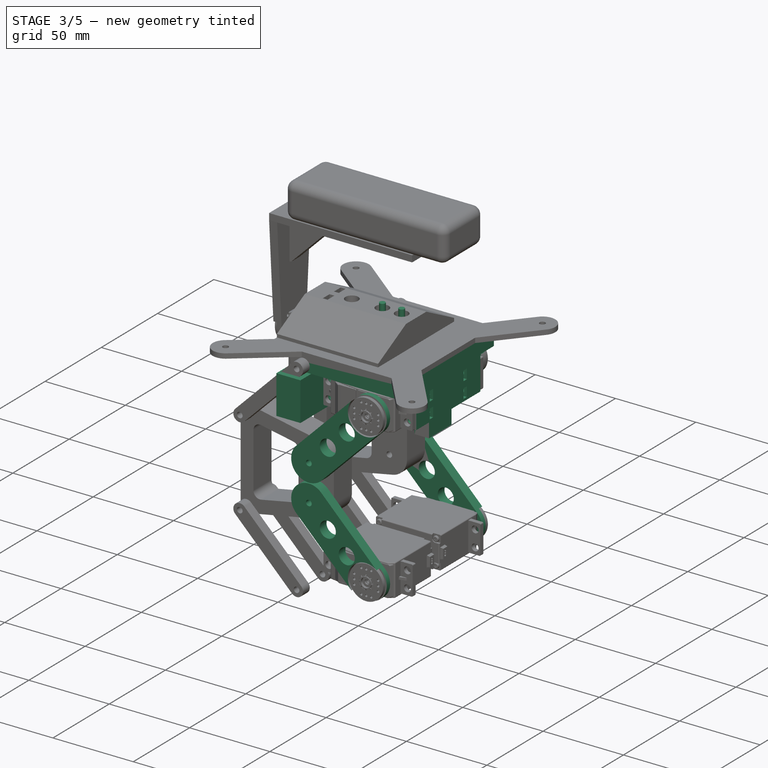
[diagram: stage 3 of 5 — iso view after this stage's code; geometry added in this stage tinted green]
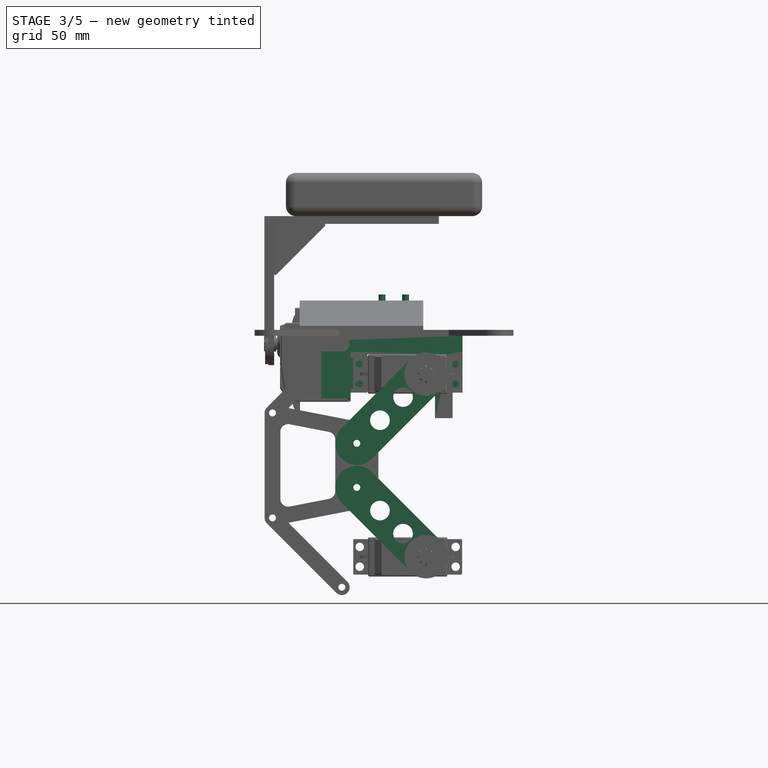
[diagram: stage 3 of 5 — front view after this stage's code; geometry added in this stage tinted green]
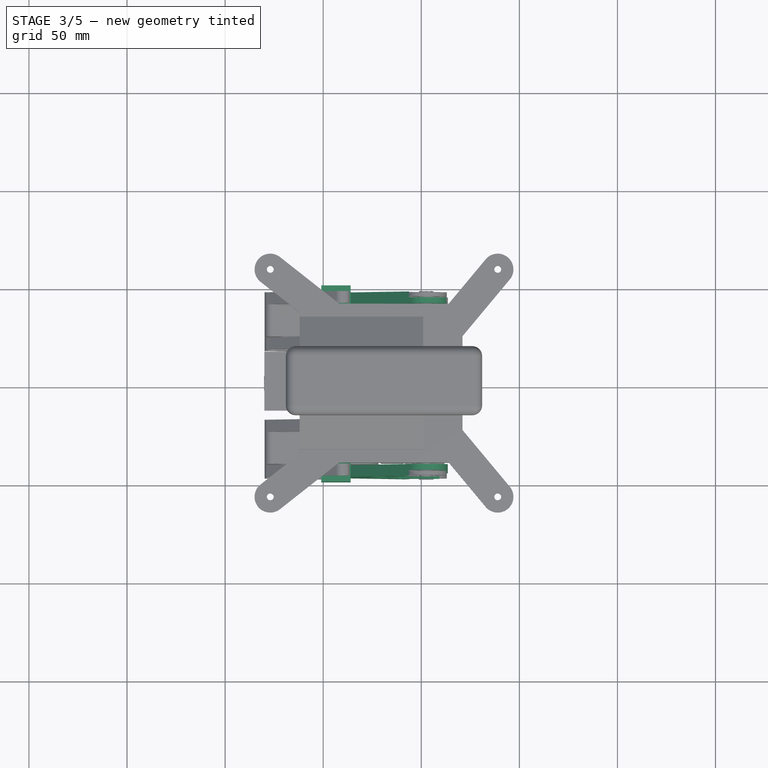
[diagram: stage 3 of 5 — top view after this stage's code; geometry added in this stage tinted green]
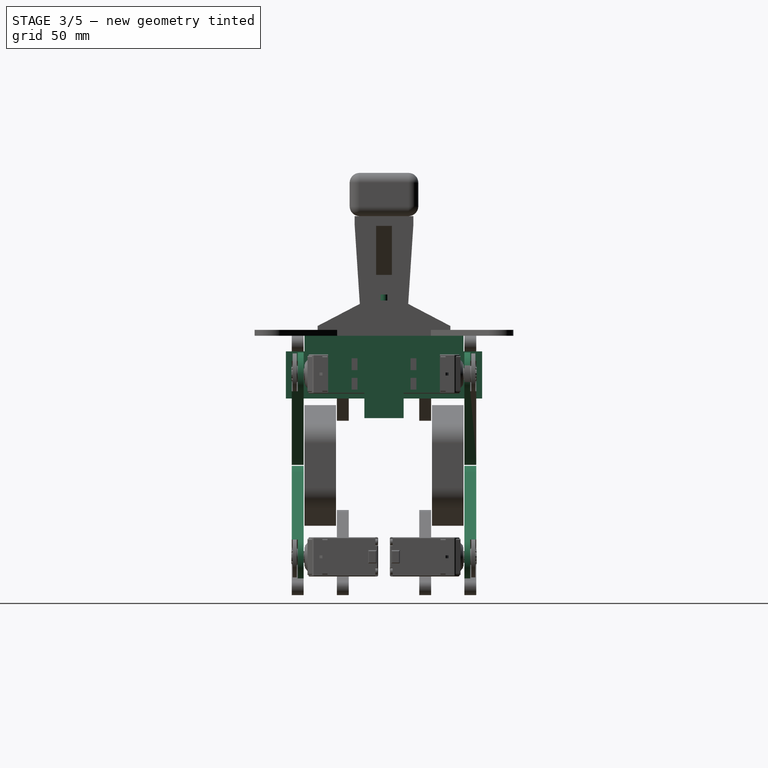
[diagram: stage 3 of 5 — right view after this stage's code; geometry added in this stage tinted green]
FEATURE [Part::Cylinder] Cylinder019  label="Cylinder140"
  Angle = 360
  Height = 43
  Placement = pos=(-3,66,73) rot=(0.57735,-0.57735,0.57735;2.0944rad)
  Radius = 4
FEATURE [Part::Cylinder] Cylinder020  label="Cylinder141"
  Angle = 360
  Height = 26
  Placement = pos=(-3,71,73) rot=(0.57735,-0.57735,0.57735;2.0944rad)
  Radius = 11.1
FEATURE [Part::Cylinder] Cylinder021  label="Cylinder096"
  Angle = 360
  Height = 31
  Placement = pos=(-7.5,-11,132) rot=(0,0,1;0rad)
  Radius = 1
FEATURE [Part::Cylinder] Cylinder022  label="Cylinder144"
  Angle = 360
  Height = 31
  Placement = pos=(0,-18.5,132) rot=(0,0,1;0rad)
  Radius = 1
FEATURE [Part::MultiFuse] Fusion001
  Shapes = -> [Cylinder019,Cylinder020]
FEATURE [Part::MultiFuse] Fusion002  label="cruz006"
  Placement = pos=(-3,-97.5,62) rot=(-1,0,0;1.5708rad)
  Shapes = -> [Cylinder022,Cylinder021,Cylinder024,Cylinder023]
FEATURE [Part::MultiFuse] Fusion003
  Placement = pos=(-0.5,88,-87) rot=(0,0,1;3.14159rad)
  Shapes = -> [Fusion002,Fusion001]
FEATURE [Part::Box] Box011  label="Cube012"
  Height = 29
  Length = 68
  Placement = pos=(-47,-40.5,-27) rot=(0,0,1;0rad)
  Width = 81
FEATURE [Part::Box] Box012  label="Cube013"
  Height = 30
  Length = 16
  Placement = pos=(-52,-24.5,-25) rot=(0,0,1;0rad)
  Width = 49
FEATURE [Part::Cylinder] Cylinder025
  Angle = 360
  Height = 100
  Placement = pos=(-40.5,-50,-2) rot=(-1,0,0;1.5708rad)
  Radius = 1.75
FEATURE [Part::Box] Box022  label="Cube042"
  Height = 25
  Length = 37
  Placement = pos=(-10,30,-1) rot=(0.707107,0,0.707107;3.14159rad)
  Width = 41
FEATURE [Part::Cylinder] Cylinder028  label="Joint-D012"
  Angle = 360
  Height = 24.5
  Placement = pos=(16,-24.5,7) rot=(0,1,0;1.5708rad)
  Radius = 1.75
FEATURE [Part::Cylinder] Cylinder029  label="Joint-D013"
  Angle = 360
  Height = 21.5
  Placement = pos=(37,-24.5,7) rot=(0,1,0;1.5708rad)
  Radius = 3
FEATURE [Part::MultiFuse] Fusion015
  Placement = pos=(-12,9.5,0) rot=(0.707107,0,0.707107;3.14159rad)
  Shapes = -> [Cylinder029,Cylinder028]
FEATURE [Part::MultiFuse] Fusion016
  Placement = pos=(-2,9.5,0) rot=(0.707107,0,0.707107;3.14159rad)
  Shapes = -> [Cylinder029,Cylinder028]
FEATURE [Part::MultiFuse] Fusion017
  Placement = pos=(-12,-39.5,0) rot=(0.707107,0,0.707107;3.14159rad)
  Shapes = -> [Cylinder029,Cylinder028]
FEATURE [Part::MultiFuse] Fusion018
  Placement = pos=(-2,-39.5,0) rot=(0.707107,0,0.707107;3.14159rad)
  Shapes = -> [Cylinder029,Cylinder028]
FEATURE [Part::Box] Box024  label="Cube043"
  Height = 6
  Length = 3
  Placement = pos=(-8,39.5,18.5) rot=(0.707107,0,0.707107;3.14159rad)
  Width = 60
FEATURE [Part::Box] Box025  label="Cube044"
  Height = 6
  Length = 3
  Placement = pos=(2,39.5,18.5) rot=(0.707107,0,0.707107;3.14159rad)
  Width = 60
FEATURE [Part::MultiFuse] Fusion022
  Placement = pos=(2.5,-5,-14) rot=(-0.57735,0.57735,0.57735;2.0944rad)
  Shapes = -> [Fusion017,Fusion018,Box024,Box025,Box022,Fusion015,Fusion016]
FEATURE [Part::Mirroring] Part__Mirroring014  label="Fusion022 (Mirror #15)"
  Base = (0,0,0)
  Normal = (0,1,0)
  Source = -> Fusion022
FEATURE [Part::MultiFuse] Fusion023
  Placement = pos=(0,0,-3.5) rot=(0,0,1;0rad)
  Shapes = -> [Fusion022,Part__Mirroring014]
FEATURE [Part::Cut] Cut
  Base = -> Pad
  Placement = pos=(16.5,-87,-15) rot=(0,1,0;1.5708rad)
  Tool = -> Fusion003
FEATURE [Part::FeaturePython] Clone010  label="Clone of Cut"  # Draft clone (typed FeaturePython)
  Objects = -> [Cut]
  Placement = pos=(16.5,-87,-37.5) rot=(0,1,0;1.5708rad)
  Scale = (1,1,1)
FEATURE [Part::Cut] Cut074
  Base = -> Box011
  Tool = -> Box012
FEATURE [Part::Box] Box059  label="Cube062"
  Height = 24
  Length = 72
  Placement = pos=(-42,28.5,-30) rot=(0,0,1;0rad)
  Width = 21
FEATURE [Part::Mirroring] Part__Mirroring020  label="Cube062 (Mirror #9)"
  Base = (0,0,0)
  Normal = (0,1,0)
  Source = -> Box059
FEATURE [Part::MultiFuse] Fusion052
  Shapes = -> [Part__Mirroring020,Box059]
FEATURE [Part::Cut] Cut075
  Base = -> Cut074
  Tool = -> Fusion052
FEATURE [Part::Cut] Cut076
  Base = -> Cut075
  Tool = -> Fusion023
FEATURE [Part::Mirroring] Part__Mirroring026  label="Clone of Cut (Mirror #15)"
  Base = (0,0,0)
  Normal = (0,1,0)
  Source = -> Clone010
FEATURE [Part::Mirroring] Part__Mirroring029  label="Cut (Mirror #18)"
  Base = (0,0,0)
  Normal = (0,1,0)
  Source = -> Cut
FEATURE [Part::Cut] Cut077
  Base = -> Cut076
  Tool = -> Cylinder025
FEATURE [Part::Cylinder] Cylinder058  label="Cylinder153"
  Angle = 360
  Height = 36
  Placement = pos=(-20,0,-13) rot=(0,0,1;0rad)
  Radius = 1.75
FEATURE [Part::Cylinder] Cylinder059  label="Cylinder154"
  Angle = 360
  Height = 36
  Placement = pos=(-8,0,-13) rot=(0,0,1;0rad)
  Radius = 1.75
FEATURE [Part::MultiFuse] Fusion054
  Shapes = -> [Cylinder058,Cylinder059]
FEATURE [Part::Box] Box060  label="Cube063"
  Height = 38
  Length = 9
  Placement = pos=(7,-10,-40) rot=(0,0,1;0rad)
  Width = 20
FEATURE [Part::Box] Box061  label="Cube064"
  Height = 24
  Length = 15
  Placement = pos=(-51,-50,-30) rot=(0,0,1;0rad)
  Width = 100
FEATURE [Part::FeaturePython] Clone017  label="Clone of Cut001"  # Draft clone (typed FeaturePython)
  Objects = -> [Cut]
  Placement = pos=(10.6317,-87,-5.83274) rot=(0,1,0;0.785398rad)
  Scale = (1,1,1)
FEATURE [Part::FeaturePython] Clone018  label="Clone of Clone of Cut"  # Draft clone (typed FeaturePython)
  Objects = -> [Clone010]
  Placement = pos=(14.1673,-87,-118.842) rot=(0,1,0;2.35619rad)
  Scale = (1,1,1)
FEATURE [Part::FeaturePython] Clone019  label="Clone of Cut (Mirror #18)"  # Draft clone (typed FeaturePython)
  Objects = -> [Part__Mirroring029]
  Placement = pos=(-11.6421,0,-6.8934) rot=(0,-1,0;0.785398rad)
  Scale = (1,1,1)
FEATURE [Part::FeaturePython] Clone020  label="Clone of Clone of Cut (Mirror #15)"  # Draft clone (typed FeaturePython)
  Objects = -> [Part__Mirroring026]
  Placement = pos=(29.0165,0,-80.6586) rot=(0,1,0;0.785398rad)
  Scale = (1,1,1)
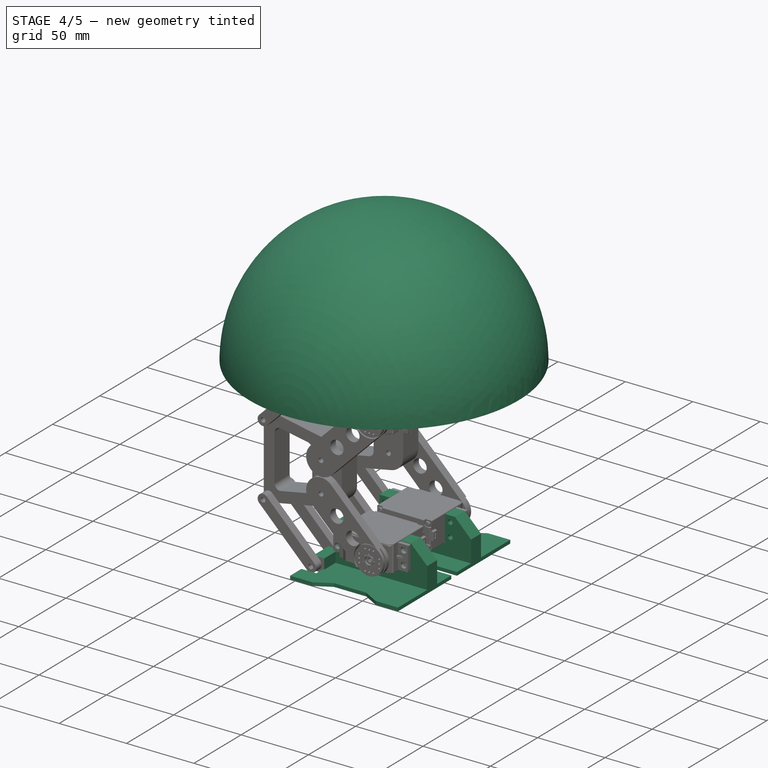
[diagram: stage 4 of 5 — iso view after this stage's code; geometry added in this stage tinted green]
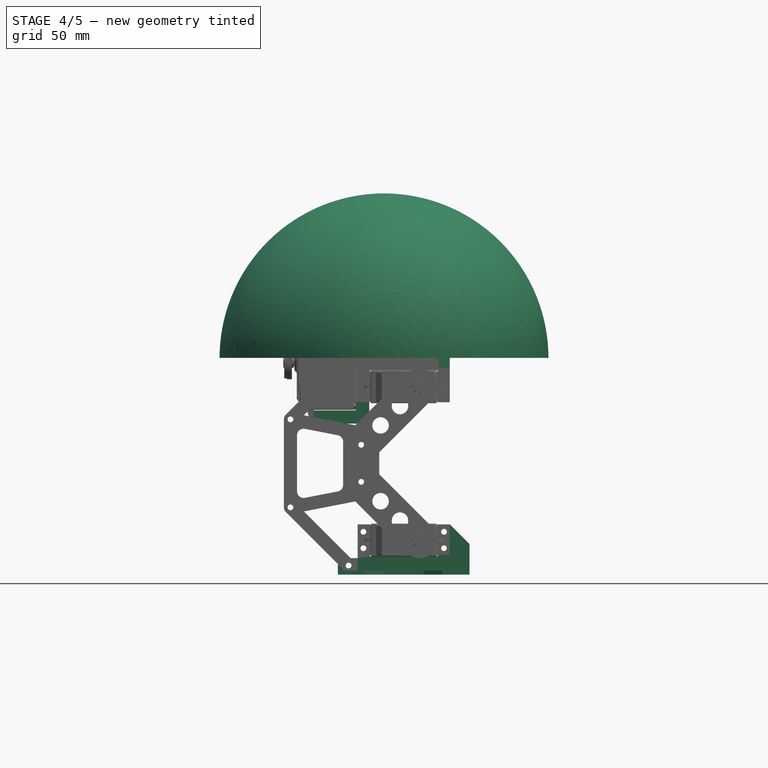
[diagram: stage 4 of 5 — front view after this stage's code; geometry added in this stage tinted green]
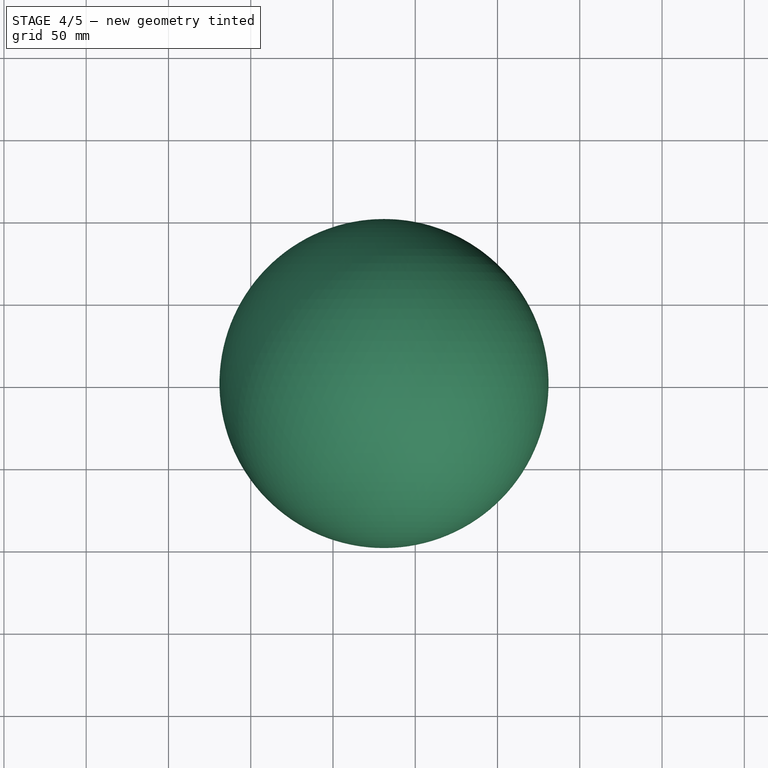
[diagram: stage 4 of 5 — top view after this stage's code; geometry added in this stage tinted green]
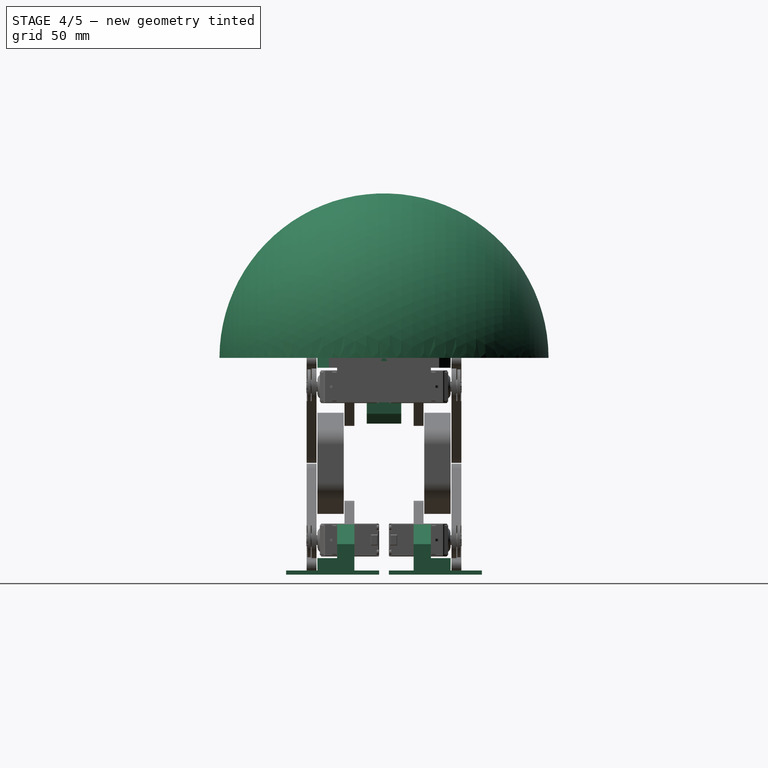
[diagram: stage 4 of 5 — right view after this stage's code; geometry added in this stage tinted green]
FEATURE [Part::Box] Box007  label="Cube008"
  Height = 29
  Length = 68
  Placement = pos=(-35,18,-153.5) rot=(0,0,1;0rad)
  Width = 10.5
FEATURE [Part::Cylinder] Cylinder016
  Angle = 360
  Height = 70
  Placement = pos=(-40.5,-5,-149.5) rot=(-1,0,0;1.5708rad)
  Radius = 1.75
FEATURE [Part::Box] Box014  label="Cube015"
  Height = 8
  Length = 34
  Placement = pos=(-62,-10.5,-40) rot=(0,0,1;0rad)
  Width = 21
FEATURE [Part::Box] Box015  label="Cube016"
  Height = 42
  Length = 8
  Placement = pos=(-36,-10.5,-40) rot=(0,0,1;0rad)
  Width = 21
FEATURE [Part::Cylinder] Cylinder026  label="Joint-D010"
  Angle = 360
  Height = 24.5
  Placement = pos=(16,-24.5,7) rot=(0,1,0;1.5708rad)
  Radius = 1.75
FEATURE [Part::Box] Box021  label="Cube002"
  Height = 25
  Length = 37
  Placement = pos=(-10,30,-1) rot=(0.707107,0,0.707107;3.14159rad)
  Width = 41
FEATURE [Part::Cylinder] Cylinder027  label="Joint-D011"
  Angle = 360
  Height = 21.5
  Placement = pos=(37,-24.5,7) rot=(0,1,0;1.5708rad)
  Radius = 3
FEATURE [Part::MultiFuse] Fusion005
  Placement = pos=(-12,9.5,0) rot=(0.707107,0,0.707107;3.14159rad)
  Shapes = -> [Cylinder027,Cylinder026]
FEATURE [Part::MultiFuse] Fusion006
  Placement = pos=(-2,9.5,0) rot=(0.707107,0,0.707107;3.14159rad)
  Shapes = -> [Cylinder027,Cylinder026]
FEATURE [Part::MultiFuse] Fusion007
  Placement = pos=(-12,-39.5,0) rot=(0.707107,0,0.707107;3.14159rad)
  Shapes = -> [Cylinder027,Cylinder026]
FEATURE [Part::MultiFuse] Fusion008
  Placement = pos=(-2,-39.5,0) rot=(0.707107,0,0.707107;3.14159rad)
  Shapes = -> [Cylinder027,Cylinder026]
FEATURE [Part::MultiFuse] Fusion012
  Placement = pos=(-16.5,-5,-134) rot=(-0.57735,-0.57735,-0.57735;2.0944rad)
  Shapes = -> [Box021,Fusion007,Fusion008,Fusion005,Fusion006]
FEATURE [Part::MultiFuse] Fusion028
  Placement = pos=(-30,0,-2) rot=(0.57735,0.57735,-0.57735;4.18879rad)
  Shapes = -> [Fusion026,Fusion027,Fusion024,Fusion025,Box029,Box030]
FEATURE [Part::Cylinder] Cylinder032  label="Cylinder147"
  Angle = 360
  Height = 30
  Placement = pos=(10,0,-2) rot=(0,1,0;1.5708rad)
  Radius = 1.75
FEATURE [Part::Prism] Prism
  Circumradius = 3.3
  Height = 10
  Placement = pos=(8,0,-2) rot=(0.250563,0.935113,0.250563;1.63783rad)
  Polygon = 6
FEATURE [Part::Feature] Part__Feature007  label="horn003"
  Placement = pos=(2.5,-41,-40) rot=(0.57735,-0.57735,0.57735;2.0944rad)
  shape: bbox 21 x 6.2 x 21 mm, 65 faces (baked)
FEATURE [Part::Box] Box057  label="Cube060"
  Height = 10
  Length = 12
  Placement = pos=(-47,24.5,-155) rot=(0,0,1;0rad)
  Width = 16
FEATURE [Part::MultiFuse] Fusion053
  Shapes = -> [Cut077,Box014,Box015]
FEATURE [Part::Cut] Cut078
  Base = -> Fusion053
  Tool = -> Fusion028
FEATURE [Part::Cut] Cut079
  Base = -> Cut078
  Tool = -> Cylinder032
FEATURE [Part::Cut] Cut080
  Base = -> Cut079
  Tool = -> Prism
FEATURE [Part::Chamfer] Chamfer007
  Base = -> Cut080
  Edges = 2 edges r=7: [Edge39,Edge55]
FEATURE [Part::Cut] Cut081
  Base = -> Chamfer007
  Tool = -> Fusion054
FEATURE [Part::Chamfer] Chamfer008
  Base = -> Cut081
  Edges = 1 edges r=6: [Edge274]
FEATURE [Part::Cut] Cut082
  Base = -> Chamfer008
  Tool = -> Box060
FEATURE [Part::Chamfer] Chamfer
  Base = -> Box007
  Edges = 1 edges r=12: [Edge6]
FEATURE [Sketcher::SketchObject] Sketch007
  Placement = pos=(0,0,-155) rot=(1,0,0;3.14159rad)
  sketch-geometry (16):
    g0: LineSegment StartX=-47 StartY=-17.5 StartZ=0 EndX=-47 EndY=-3 EndZ=0
    g1: LineSegment StartX=-47 StartY=-3 StartZ=0 EndX=-30.5 EndY=-3 EndZ=0
    g2: LineSegment StartX=-30.5 StartY=-3 StartZ=0 EndX=-19 EndY=-9.5 EndZ=0
    g3: LineSegment StartX=-19 StartY=-9.5 StartZ=0 EndX=5 EndY=-9.5 EndZ=0
    g4: LineSegment StartX=5 StartY=-9.5 StartZ=0 EndX=16.5 EndY=-3 EndZ=0
    g5: LineSegment StartX=16.5 StartY=-3 StartZ=0 EndX=33 EndY=-3 EndZ=0
    g6: LineSegment StartX=33 StartY=-3 StartZ=0 EndX=33 EndY=-59.5 EndZ=0
    g7: LineSegment StartX=33 StartY=-59.5 StartZ=0 EndX=16.5 EndY=-59.5 EndZ=0
    g8: LineSegment StartX=16.5 StartY=-59.5 StartZ=0 EndX=5 EndY=-53 EndZ=0
    g9: LineSegment StartX=5 StartY=-53 StartZ=0 EndX=-19 EndY=-53 EndZ=0
    g10: LineSegment StartX=-19 StartY=-53 StartZ=0 EndX=-30.5 EndY=-59.5 EndZ=0
    g11: LineSegment StartX=-30.5 StartY=-59.5 StartZ=0 EndX=-47 EndY=-59.5 EndZ=0
    g12: LineSegment StartX=-47 StartY=-59.5 StartZ=0 EndX=-47 EndY=-47.5 EndZ=0
    g13: LineSegment StartX=-47 StartY=-47.5 StartZ=0 EndX=-36 EndY=-47.5 EndZ=0
    g14: LineSegment StartX=-36 StartY=-17.5 StartZ=0 EndX=-47 EndY=-17.5 EndZ=0
    g15: LineSegment StartX=-36 StartY=-17.5 StartZ=0 EndX=-36 EndY=-47.5 EndZ=0
  constraints (47):
    c: Coincident(g0,g1)
    c: Coincident(g1,g2)
    c: Coincident(g2,g3)
    c: Coincident(g3,g4)
    c: Coincident(g4,g5)
    c: Coincident(g5,g6)
    c: Coincident(g6,g7)
    c: Coincident(g7,g8)
    c: Coincident(g8,g9)
    c: Coincident(g9,g10)
    c: Coincident(g10,g11)
    c: Coincident(g11,g12)
    c: Coincident(g12,g13)
    c: Coincident(g14,g0)
    c: Vertical(g0)
    c: Vertical(g12)
    c: Vertical(g6)
    c: Horizontal(g3)
    c: Horizontal(g1)
    c: Horizontal(g5)
    c: Horizontal(g9)
    c: Horizontal(g13)
    c: Horizontal(g14)
    c: Horizontal(g7)
    c: Equal(g3,g9)
    c: Equal(g5,g7)
    c: Equal(g7,g11)
    c: Equal(g11,g1)
    c: Equal(g4,g2)
    c: Equal(g2,g10)
    c: Equal(g10,g8)
    c: DistanceY(g-1,g5) = -3
    c: DistanceX(g-1,g5) = 33
    c: Tangent(g11,g7)
    c: DistanceX(g2,g9) = 0
    c: DistanceX(g11,g6) = 80
    c: Distance(g0) = 14.5
    c: Distance(g14) = 11
    c: Distance(g6) = 56.5
    c: DistanceY(g2,g1) = 6.5
    c: Distance(g3) = 24
    c: DistanceX(g1,g2) = 11.5
    c: Coincident(g14,g15)
    c: Coincident(g13,g15)
    c: Vertical(g15)
    c: Distance(g12) = 12
    c: Equal(g13,g14)
FEATURE [PartDesign::Pad] Pad005
  Length = 2.5
  Length2 = 100
  Placement = pos=(0,0,-155) rot=(1,0,0;3.14159rad)
  Reversed = true
  Sketch = -> Sketch007
  Type = 0
FEATURE [Part::MultiFuse] Fusion
  Shapes = -> [Pad005,Chamfer,Box057]
FEATURE [Part::Cut] Cut083
  Base = -> Fusion
  Tool = -> Fusion012
FEATURE [Part::Cut] Cut084
  Base = -> Cut083
  Tool = -> Cylinder016
FEATURE [Part::Cut] Cut085
  Base = -> Cut082
  Tool = -> Box061
FEATURE [Part::Chamfer] Chamfer009
  Base = -> Cut084
  Edges = 1 edges r=4: [Edge2]
  Placement = pos=(0,0,94) rot=(0,0,1;0rad)
FEATURE [Part::Mirroring] Part__Mirroring031  label="Chamfer009 (Mirror #18)"
  Base = (0,0,0)
  Normal = (0,1,0)
  Source = -> Chamfer009
FEATURE [Part::Chamfer] Chamfer011
  Base = -> Cut085
  Edges = 2 edges r=4: [Edge248,Edge256]
FEATURE [Part::Sphere] Sphere
  Angle1 = -90
  Angle2 = 90
  Angle3 = 180
  Placement = pos=(-19,0,0) rot=(1,0,0;1.5708rad)
  Radius = 100
FEATURE [Part::Cylinder] Cylinder084  label="Cylinder192"
  Angle = 360
  Height = 60
  Placement = pos=(-7,25,-12) rot=(0,0,1;0rad)
  Radius = 1.25
FEATURE [Part::Cylinder] Cylinder085  label="Cylinder193"
  Angle = 360
  Height = 60
  Placement = pos=(-7,-25,-12) rot=(0,0,1;0rad)
  Radius = 1.25
FEATURE [Part::MultiFuse] Fusion072
  Placement = pos=(-3,0,0) rot=(0,1,0;0.575959rad)
  Shapes = -> [Cylinder085,Cylinder084]
FEATURE [Part::FeaturePython] Clone013  label="Clone of Sphere002"  # Draft clone (typed FeaturePython)
  Objects = -> [Sphere]
  Placement = pos=(-19,0,0) rot=(1,0,0;1.5708rad)
  Scale = (1,1,1)
FEATURE [Part::FeaturePython] Clone014  label="Clone of Chamfer009 (Mirror #18)"  # Draft clone (typed FeaturePython)
  Objects = -> [Part__Mirroring031]
  Placement = pos=(4e-12,0,-70.7107) rot=(0,0,1;0rad)
  Scale = (1,1,1)
FEATURE [Part::FeaturePython] Clone015  label="Clone of Chamfer009"  # Draft clone (typed FeaturePython)
  Objects = -> [Chamfer009]
  Placement = pos=(4e-12,0,23.2893) rot=(0,0,1;0rad)
  Scale = (1,1,1)
FEATURE [Part::FeaturePython] Clone016  label="Clone of Chamfer011"  # Draft clone (typed FeaturePython)
  Objects = -> [Chamfer011]
  Scale = (1,1,1)
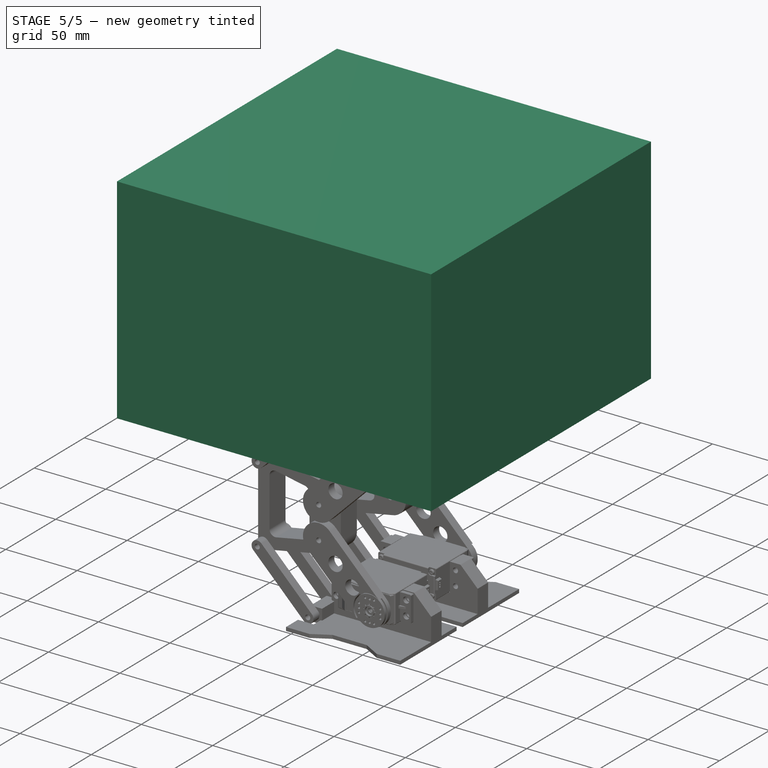
[diagram: stage 5 of 5 — iso view after this stage's code; geometry added in this stage tinted green]
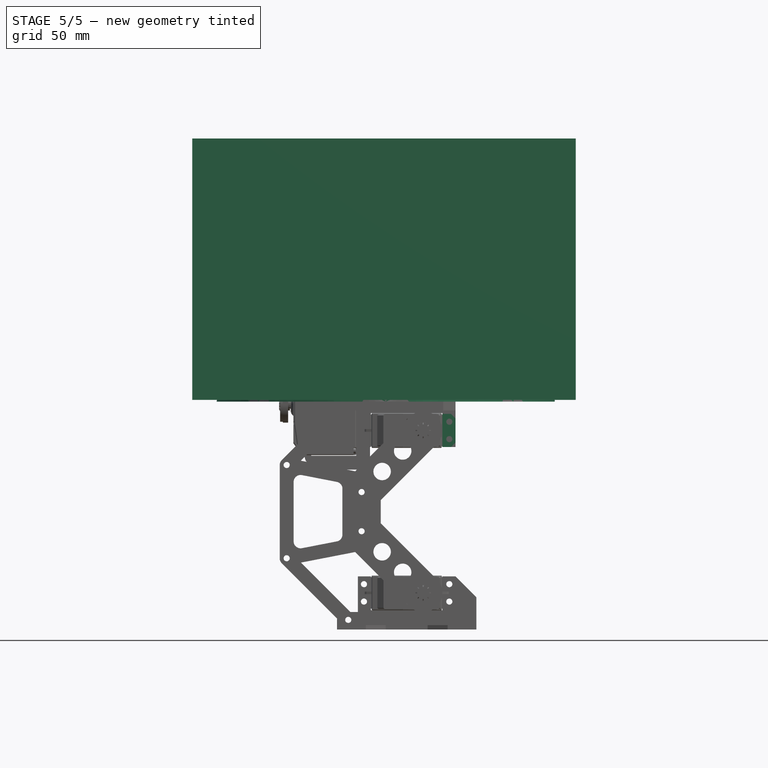
[diagram: stage 5 of 5 — front view after this stage's code; geometry added in this stage tinted green]
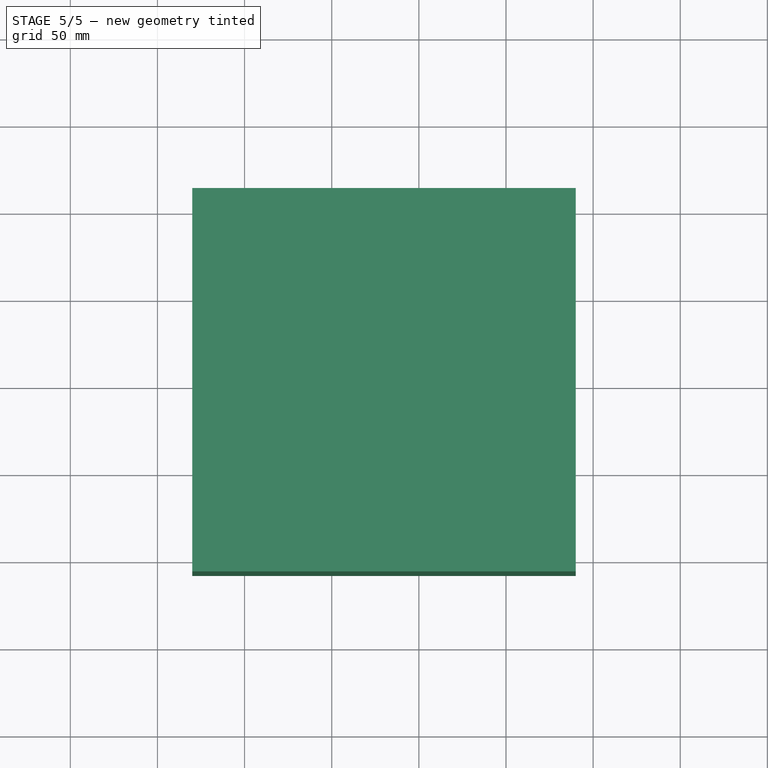
[diagram: stage 5 of 5 — top view after this stage's code; geometry added in this stage tinted green]
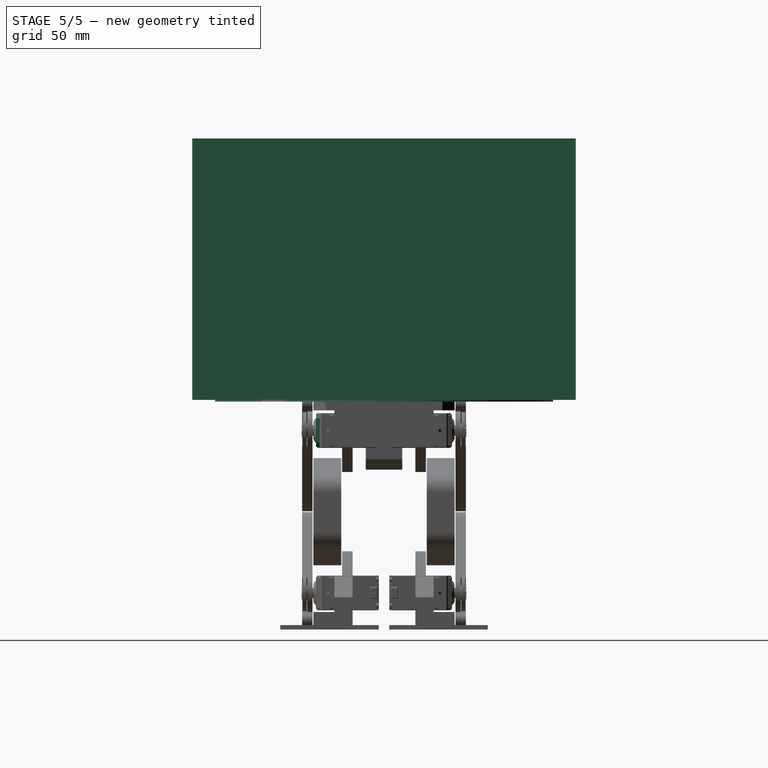
[diagram: stage 5 of 5 — right view after this stage's code; geometry added in this stage tinted green]
FEATURE [Part::FeaturePython] Clone011  label="Clone of Sphere"  # Draft clone (typed FeaturePython)
  Objects = -> [Sphere]
  Placement = pos=(-19,0,0) rot=(1,0,0;1.5708rad)
  Scale = (1,1,0.8)
FEATURE [Part::Sphere] Sphere001
  Angle1 = -90
  Angle2 = 90
  Angle3 = 180
  Placement = pos=(-19,0,0) rot=(1,0,0;1.5708rad)
  Radius = 97
FEATURE [Part::FeaturePython] Clone012  label="Clone of Sphere001"  # Draft clone (typed FeaturePython)
  Objects = -> [Sphere001]
  Placement = pos=(-19,0,-1) rot=(1,0,0;1.5708rad)
  Scale = (1,1,0.8)
FEATURE [Part::Box] Box066  label="Cube069"
  Height = 150
  Length = 220
  Placement = pos=(-130,-110,0) rot=(0,0,1;0rad)
  Width = 220
FEATURE [Part::Cut] Cut093
  Base = -> Box066
  Tool = -> Clone011
FEATURE [Part::Box] Box067  label="Cube070"
  Height = 19
  Length = 7.5
  Placement = pos=(13.5,-39,-27) rot=(0,0,1;0rad)
  Width = 2
FEATURE [Part::Chamfer] Chamfer012
  Base = -> Box067
  Edges = 2 edges r=2.5: [Edge6,Edge8]
FEATURE [Part::Cylinder] Cylinder073  label="Cylinder185"
  Angle = 360
  Height = 30
  Placement = pos=(17.5,-21,-12.5) rot=(1,0,0;1.5708rad)
  Radius = 1.75
FEATURE [Part::Cylinder] Cylinder074  label="Cylinder186"
  Angle = 360
  Height = 30
  Placement = pos=(17.5,-21,-22.5) rot=(1,0,0;1.5708rad)
  Radius = 1.75
FEATURE [Part::MultiFuse] Fusion060
  Shapes = -> [Cylinder073,Cylinder074]
FEATURE [Part::Cut] Cut094  label="spacer"
  Base = -> Chamfer012
  Tool = -> Fusion060
FEATURE [Part::Cylinder] Cylinder075  label="Joint-D025"
  Angle = 360
  Height = 24.5
  Placement = pos=(16,-24.5,7) rot=(0,1,0;1.5708rad)
  Radius = 1.75
FEATURE [Part::Cylinder] Cylinder076  label="Joint-D026"
  Angle = 360
  Height = 21.5
  Placement = pos=(37,-24.5,7) rot=(0,1,0;1.5708rad)
  Radius = 3
FEATURE [Part::MultiFuse] Fusion063
  Placement = pos=(-12,9.5,0) rot=(0.707107,0,0.707107;3.14159rad)
  Shapes = -> [Cylinder076,Cylinder075]
FEATURE [Part::MultiFuse] Fusion064
  Placement = pos=(-2,9.5,0) rot=(0.707107,0,0.707107;3.14159rad)
  Shapes = -> [Cylinder076,Cylinder075]
FEATURE [Part::MultiFuse] Fusion065
  Placement = pos=(-12,-39.5,0) rot=(0.707107,0,0.707107;3.14159rad)
  Shapes = -> [Cylinder076,Cylinder075]
FEATURE [Part::MultiFuse] Fusion066
  Placement = pos=(-2,-39.5,0) rot=(0.707107,0,0.707107;3.14159rad)
  Shapes = -> [Cylinder076,Cylinder075]
FEATURE [Part::Box] Box070  label="Cube073"
  Height = 6
  Length = 3
  Placement = pos=(-8,41.5,18.5) rot=(0.707107,0,0.707107;3.14159rad)
  Width = 64
FEATURE [Part::Box] Box071  label="Cube074"
  Height = 6
  Length = 3
  Placement = pos=(2,41.5,18.5) rot=(0.707107,0,0.707107;3.14159rad)
  Width = 64
FEATURE [Part::Box] Box072  label="Cube075"
  Height = 15
  Length = 70
  Placement = pos=(-62,-17.5,2) rot=(0,0,1;0rad)
  Width = 35
FEATURE [Part::Box] Box073  label="Cube076"
  Height = 15
  Length = 57
  Placement = pos=(-93,-10.5,-6) rot=(0,0,1;0rad)
  Width = 21
FEATURE [Part::Cut] Cut096
  Base = -> Box072
  Tool = -> Box073
FEATURE [Part::Cylinder] Cylinder077
  Angle = 360
  Height = 60
  Placement = pos=(-39,0,-20) rot=(0,0,1;0rad)
  Radius = 8
FEATURE [Part::Cylinder] Cylinder078
  Angle = 360
  Height = 60
  Placement = pos=(-20,0,5) rot=(0,0,1;0rad)
  Radius = 4
FEATURE [Part::Cylinder] Cylinder079  label="Cylinder187"
  Angle = 360
  Height = 60
  Placement = pos=(-8,0,5) rot=(0,0,1;0rad)
  Radius = 4
FEATURE [Part::Cylinder] Cylinder080  label="Cylinder188"
  Angle = 360
  Height = 60
  Placement = pos=(-20,0,-12) rot=(0,0,1;0rad)
  Radius = 1.75
FEATURE [Part::Cylinder] Cylinder081  label="Cylinder189"
  Angle = 360
  Height = 60
  Placement = pos=(-8,0,-12) rot=(0,0,1;0rad)
  Radius = 1.75
FEATURE [Part::MultiFuse] Fusion067
  Shapes = -> [Cylinder078,Cylinder079,Cylinder080,Cylinder081]
FEATURE [Part::MultiFuse] Fusion068
  Placement = pos=(-30,0,-2) rot=(0.57735,0.57735,-0.57735;4.18879rad)
  Shapes = -> [Fusion065,Fusion066,Fusion063,Fusion064,Box070,Box071]
FEATURE [Part::Box] Box074  label="Cube077"
  Height = 15
  Length = 33
  Placement = pos=(-14,-38.5,2) rot=(0,0,1;0rad)
  Width = 77
FEATURE [Part::MultiFuse] Fusion069
  Shapes = -> [Cut096,Box074]
FEATURE [Part::Chamfer] Chamfer014
  Base = -> Fusion069
  Edges = 4 edges: [Edge2 r=6,Edge3 r=14,Edge13 r=6,Edge19 r=14]
FEATURE [Part::Box] Box075  label="Cube078"
  Height = 15
  Length = 34
  Placement = pos=(-7,-38.5,19) rot=(0,1,0;0.541052rad)
  Width = 77
FEATURE [Part::Cut] Cut097
  Base = -> Chamfer014
  Tool = -> Box075
FEATURE [Part::MultiFuse] Fusion070
  Shapes = -> [Cylinder077,Fusion067,Fusion068]
FEATURE [Part::Cut] Cut098
  Base = -> Cut097
  Tool = -> Fusion070
FEATURE [Part::Cylinder] Cylinder082  label="Cylinder190"
  Angle = 360
  Height = 60
  Placement = pos=(-7,10,-12) rot=(0,0,1;0rad)
  Radius = 1.25
FEATURE [Part::Cylinder] Cylinder083  label="Cylinder191"
  Angle = 360
  Height = 60
  Placement = pos=(-7,-10,-12) rot=(0,0,1;0rad)
  Radius = 1.25
FEATURE [Part::MultiFuse] Fusion071
  Shapes = -> [Cylinder083,Cylinder082]
FEATURE [Part::Cut] Cut099
  Base = -> Cut098
  Tool = -> Fusion071
FEATURE [Part::Cut] Cut100
  Base = -> Cut099
  Tool = -> Fusion072
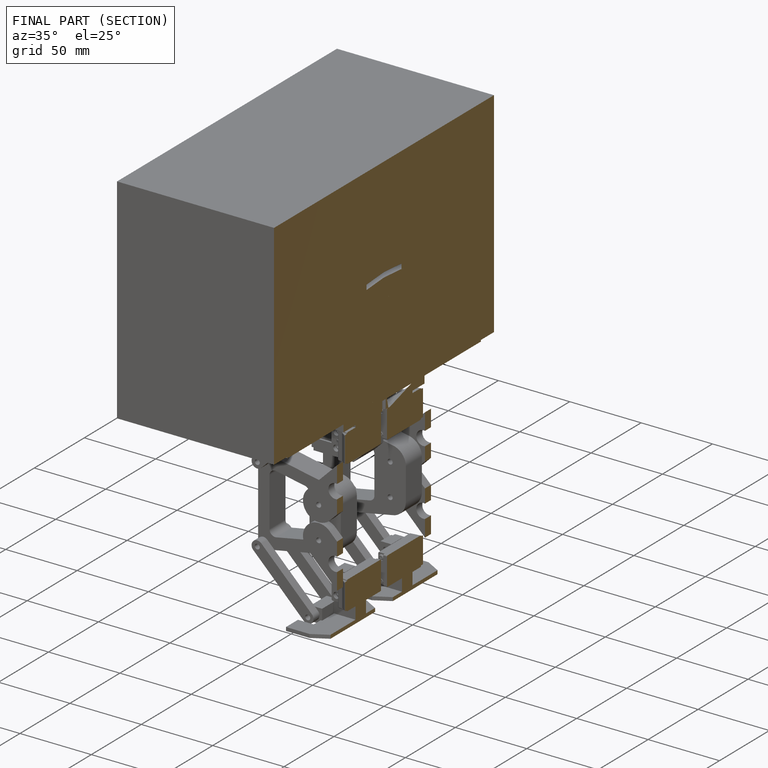
[diagram: finished part — half-section view (interior)]
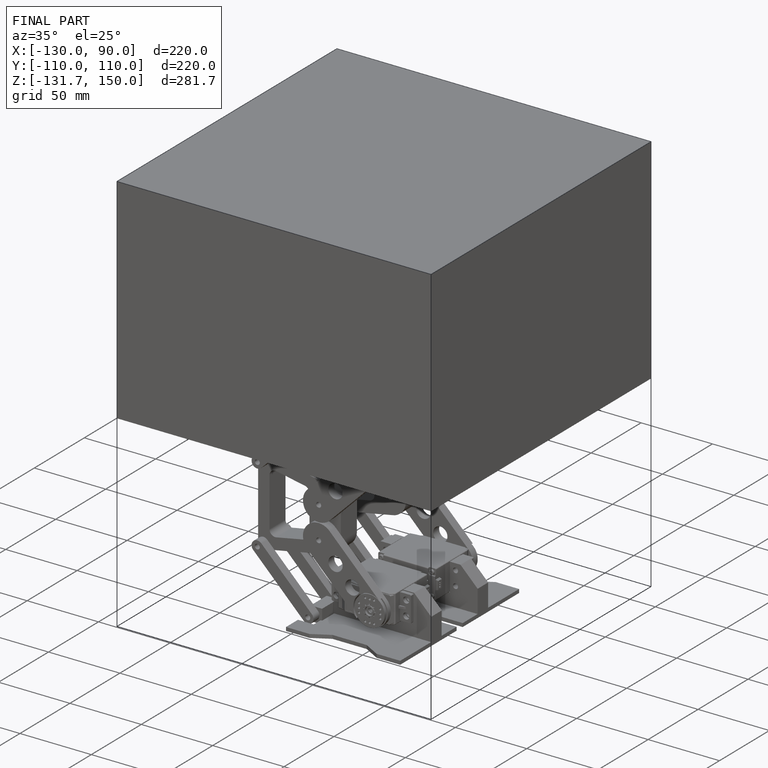
[diagram: finished part — iso view with bounding-box wireframe]
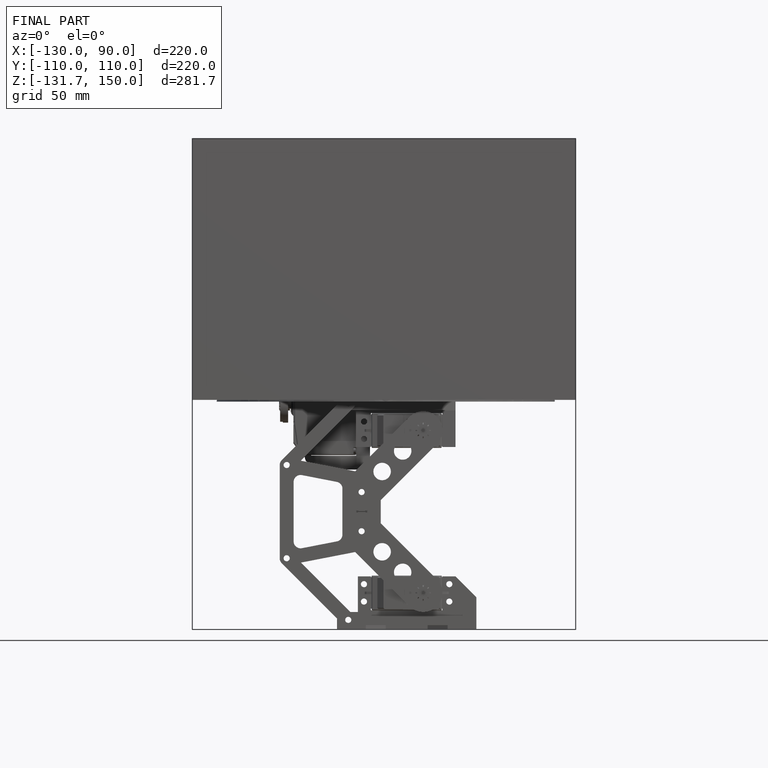
[diagram: finished part — front view with bounding-box wireframe]
